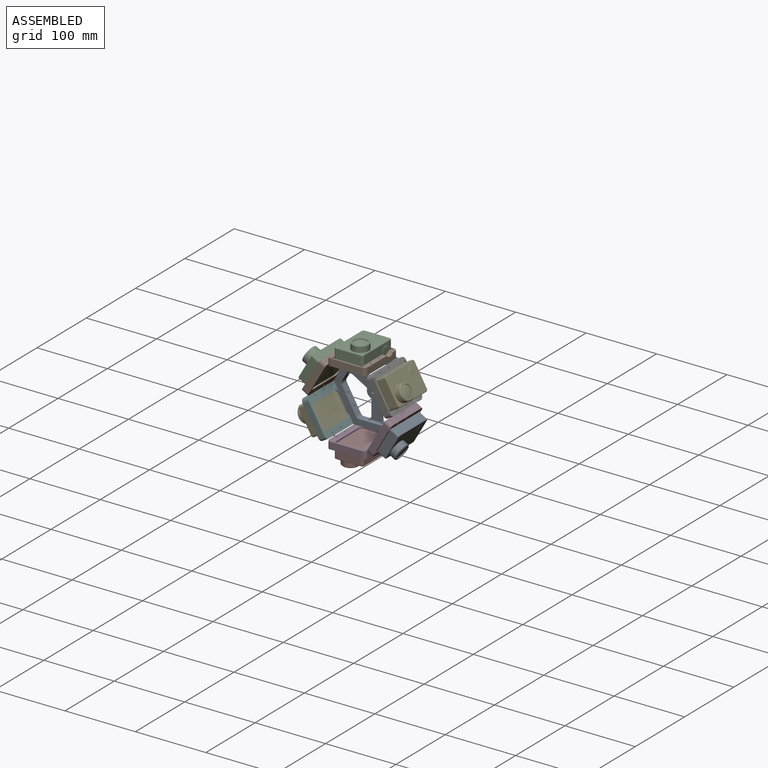
[diagram: assembled view]
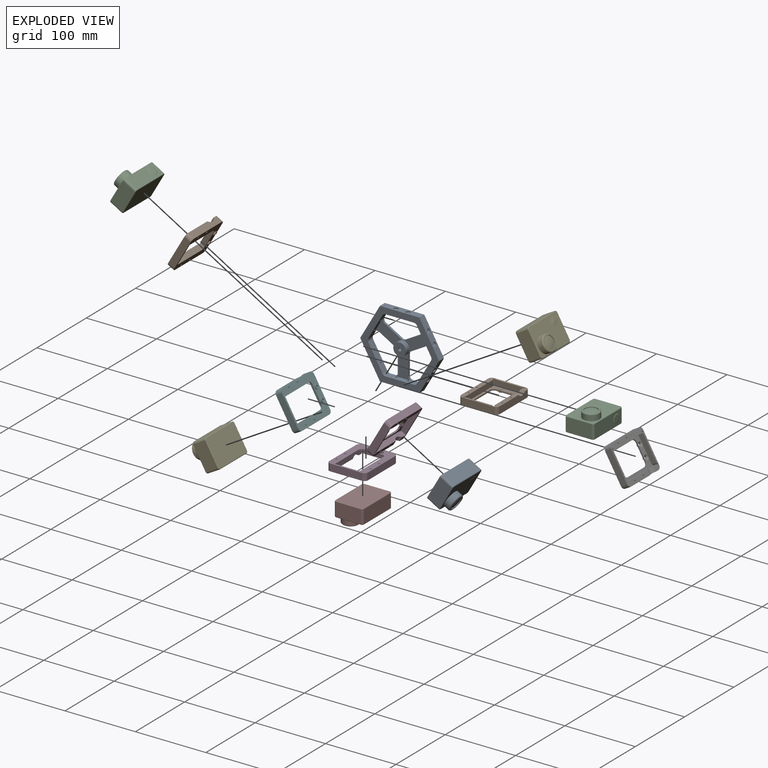
[diagram: exploded view]
GUIDED TOUR — MATED ASSEMBLY (Onshape document 9c38cecef5e9b53f635a4dc5, AutoMate assembly 9c38cecef5e9b53f635a4dc5_227ad06c4d0394dedd1eaec3_ae85a5137a5b2e4cc9e6681c_default)

This assembly has 13 components, labeled P0..P12 below (a component is one placed occurrence of a part; the same part can appear more than once), held together by 12 mates. A mate is a constraint between two components; its type names the relative motion it leaves free:
  FASTENED — locks the two components together rigidly (no relative motion).
Axis/direction vectors are unit vectors and 'through' points are millimeter coordinates, both in the assembly's world frame.

MATES
  1. FASTENED "Fastened 11": P4 <-> P6, direction (-0.866, 0.000, -0.500) through (129.96, 152.46, 191.49) mm
  2. FASTENED "Fastened 8": P10 <-> P1, direction (0.866, 0.000, -0.500) through (42.50, 152.46, 191.49) mm
  3. FASTENED "Fastened 9": P7 <-> P11, direction (0.000, 0.000, 1.000) through (86.23, 152.46, 115.75) mm
  4. FASTENED "Fastened 3": P5 <-> P8, direction (-0.500, 0.000, 0.866) through (44.23, 154.96, 142.00) mm
  5. FASTENED "Fastened 1": P11 <-> P8, direction (-1.000, 0.000, 0.000) through (86.23, 154.96, 117.75) mm
  6. FASTENED "Fastened 10": P0 <-> P3, direction (-0.866, 0.000, 0.500) through (129.96, 152.46, 141.00) mm
  7. FASTENED "Fastened 6": P9 <-> P8, direction (1.000, 0.000, 0.000) through (86.23, 144.96, 214.74) mm
  8. FASTENED "Fastened 5": P6 <-> P8, direction (0.500, 0.000, -0.866) through (128.23, 154.96, 190.49) mm
  9. FASTENED "Fastened 12": P2 <-> P9, direction (-1.000, 0.000, 0.000) through (86.23, 152.46, 216.74) mm
  10. FASTENED "Fastened 2": P3 <-> P8, direction (-0.500, 0.000, -0.866) through (128.23, 154.96, 142.00) mm
  11. FASTENED "Fastened 4": P1 <-> P8, direction (0.500, 0.000, 0.866) through (44.23, 154.96, 190.49) mm
  12. FASTENED "Fastened 7": P12 <-> P5, direction (0.866, 0.000, 0.500) through (42.50, 152.46, 141.00) mm

ASSEMBLY ORDER
  1. P3 — the base component [order verified]
  2. P8 [order verified]
  3. P6 [order verified]
  4. P0 [order verified]
  5. P4 [order verified]
  6. P9 [order verified]
  7. P11 [order verified]
  8. P1 [order verified]
  9. P5 [order verified]
  10. P10 [order verified]
  11. P12 [order verified]
  12. P2 [order verified]
  13. P7 [order verified]
(P1, P5, P6, P9, P11 verified with a relaxed clearance tolerance: the source model stores slight part interference there.)
Order-tag legend:
  [order verified] — this step's position reverses a verified removal order: the component was checked to insert without passing through the ones already placed.

Of the 13 components, 7 carry the full construction recipe — the FeatureScript program that regenerates the part's solid from scratch; the rest are supplied as boundary geometry only.
Because this assembly has more than 12 components, the tour below covers the 12 most significant ones individually (every recipe-attached component first, then the largest by part volume), in assembly order; the remaining 1 are summarized together in a grouped section at the end.
Each toured component is shown spotlighted twice — in the assembled view, then in the exploded view, where a leader line traces a displaced component back to its assembled socket (saturated green if recipe-attached, orange if geometry-only; every other component desaturated gray) — followed by its recipe or geometry summary and the mates that hold it.
NOTE — this tour is split across 2 documents so each fits a 32k-token context. This is document 1: the component sections continue in the remaining 1 document, each repeating the header above.
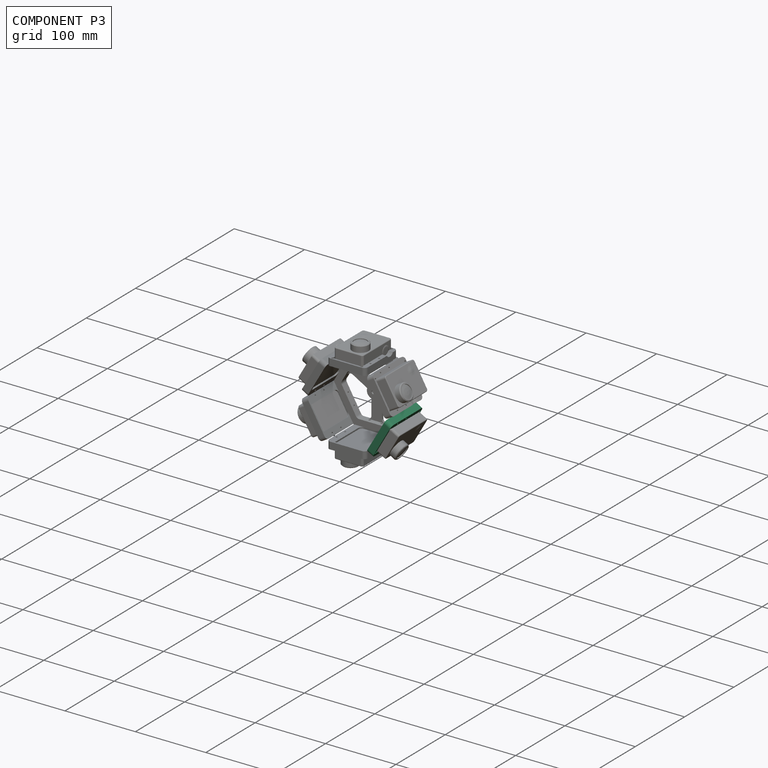
[diagram: component P3 — assembled]
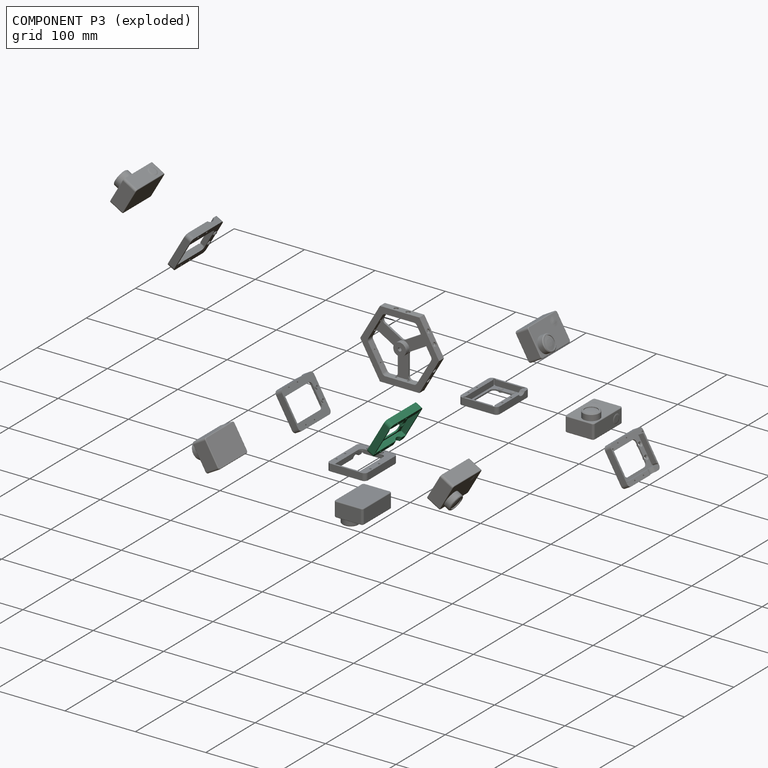
[diagram: component P3 — exploded]
COMPONENT P3 — same part as P1 (CADFS 00347183); its construction recipe is shown at P1.
Held by: FASTENED mate "Fastened 10" to P0; FASTENED mate "Fastened 2" to P8.
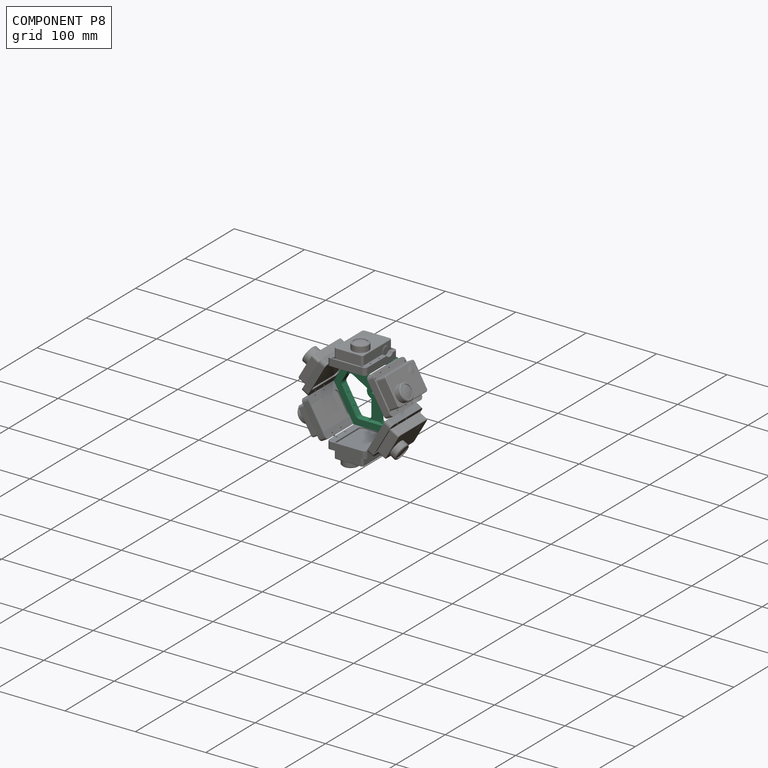
[diagram: component P8 — assembled]
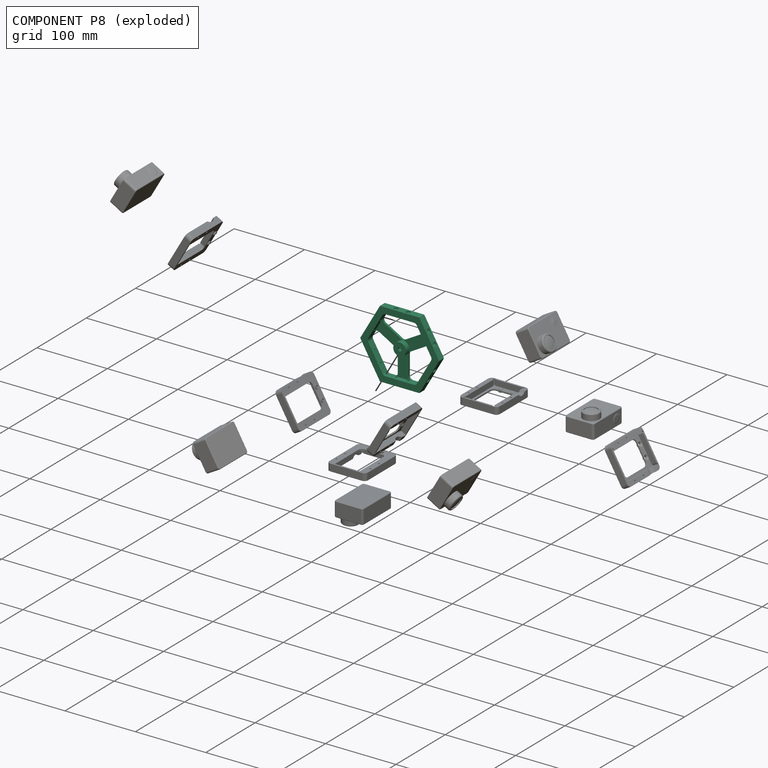
[diagram: component P8 — exploded]
COMPONENT P8 — recipe-attached (CADFS 00347187, mesh-verified: the recipe's output STEP matches this component's geometry to below the mesh-comparison resolution (tessellation chordal tolerance ~0.223 mm)).
Held by: FASTENED mate "Fastened 3" to P5; FASTENED mate "Fastened 1" to P11; FASTENED mate "Fastened 6" to P9; FASTENED mate "Fastened 5" to P6; FASTENED mate "Fastened 2" to P3; FASTENED mate "Fastened 4" to P1.
Construction recipe (FeatureScript — the CAD program that rebuilds this solid; sketch coordinates are in the units given by the * unit suffixes, e.g. mm):

FeatureScript 1511;
import(path : "onshape/std/geometry.fs", version : "1511.0");
import(path : "onshape/std/common.fs", version : "1511.0");
const mm = millimeter;
const VERTEX = EntityType.VERTEX;
const EDGE = EntityType.EDGE;
const FACE = EntityType.FACE;
const BODY = EntityType.BODY;
function v(x, y){return vector(x, y);}
function OD(order){return orderDisambiguation(order);}
function OSD(set){return originalSetDisambiguation(set);}
function TD(topology){return topologyDisambiguation(topology);}
function TDD(query){return trueDependencyDisambiguation(query);}
function sQuery(a, b, c) {return sketchEntityQuery(a, b, c);}

annotation { "Feature Type Name" : "Feature", "Feature Type Description" : "" }
export const myFeature = defineFeature(function(context is Context, id is Id, definition is map)
    precondition{}
    {
        {
            var Q0;
            Q0=qCreatedBy(makeId("Front.planeOp"),FACE);
            var sketch = newSketch(context, id + "F0", { "sketchPlane" : qUnion([Q0])});
            skCircle(sketch, "E0.cCircle", {"center": v(0, 0) * mm, "radius": 56 * mm, "construction": true});
            skLineSegment(sketch, "E0.0", {"start": v(56, 0) * mm, "end": v(28, -48.5) * mm});
            skLineSegment(sketch, "E0.1", {"start": v(28, -48.5) * mm, "end": v(-28, -48.5) * mm});
            skLineSegment(sketch, "E0.2", {"start": v(-28, -48.5) * mm, "end": v(-56, 0) * mm});
            skLineSegment(sketch, "E0.3", {"start": v(-56, 0) * mm, "end": v(-28, 48.5) * mm});
            skLineSegment(sketch, "E0.4", {"start": v(-28, 48.5) * mm, "end": v(28, 48.5) * mm});
            skLineSegment(sketch, "E0.5", {"start": v(28, 48.5) * mm, "end": v(56, 0) * mm});
            skCircle(sketch, "E1.cCircle", {"center": v(0, 0) * mm, "radius": 46 * mm, "construction": true});
            skLineSegment(sketch, "E1.0", {"start": v(44.56, -2.5) * mm, "end": v(24.44, -37.34) * mm});
            skLineSegment(sketch, "E1.1", {"start": v(20.11, -39.84) * mm, "end": v(12.5, -39.84) * mm});
            skLineSegment(sketch, "E1.2", {"start": v(-24.44, -37.34) * mm, "end": v(-44.56, -2.5) * mm});
            skLineSegment(sketch, "E1.3", {"start": v(-28.25, 30.74) * mm, "end": v(-24.44, 37.34) * mm});
            skLineSegment(sketch, "E1.4", {"start": v(-20.11, 39.84) * mm, "end": v(20.11, 39.84) * mm});
            skLineSegment(sketch, "E1.5", {"start": v(24.44, 37.34) * mm, "end": v(28.25, 30.74) * mm});
            skLineSegment(sketch, "E2", {"start": v(7.5, -7.22) * mm, "end": v(7.5, -34.84) * mm});
            skLineSegment(sketch, "E3", {"start": v(-7.5, -7.22) * mm, "end": v(-7.5, -34.84) * mm});
            skLineSegment(sketch, "E4", {"start": v(10, -2.89) * mm, "end": v(33.92, 10.92) * mm});
            skLineSegment(sketch, "E5", {"start": v(2.5, 10.1) * mm, "end": v(26.42, 23.91) * mm});
            skLineSegment(sketch, "E6", {"start": v(-2.5, 10.1) * mm, "end": v(-26.42, 23.91) * mm});
            skLineSegment(sketch, "E7", {"start": v(-10, -2.89) * mm, "end": v(-33.92, 10.92) * mm});
            skPoint(sketch, "E8.newPointB", {"position": v(-46, 0) * mm});
            skArc(sketch, "E8.filletArc", {"start": v(-28.25, 30.74) * mm, "mid": v(-28.75, 26.95) * mm, "end": v(-26.42, 23.91) * mm});
            skPoint(sketch, "E9.visualSharp", {"position": v(-23, 39.84) * mm});
            skArc(sketch, "E9.filletArc", {"start": v(-20.11, 39.84) * mm, "mid": v(-22.61, 39.17) * mm, "end": v(-24.44, 37.34) * mm});
            skPoint(sketch, "E10.visualSharp", {"position": v(23, 39.84) * mm});
            skArc(sketch, "E10.filletArc", {"start": v(24.44, 37.34) * mm, "mid": v(22.61, 39.17) * mm, "end": v(20.11, 39.84) * mm});
            skPoint(sketch, "E11.newPointA", {"position": v(46, 0) * mm});
            skArc(sketch, "E11.filletArc", {"start": v(26.42, 23.91) * mm, "mid": v(28.75, 26.95) * mm, "end": v(28.25, 30.74) * mm});
            skPoint(sketch, "E12.visualSharp", {"position": v(23, -39.84) * mm});
            skArc(sketch, "E12.filletArc", {"start": v(20.11, -39.84) * mm, "mid": v(22.61, -39.17) * mm, "end": v(24.44, -37.34) * mm});
            skArc(sketch, "E13.filletArc", {"start": v(7.5, -34.84) * mm, "mid": v(8.96, -38.37) * mm, "end": v(12.5, -39.84) * mm});
            skArc(sketch, "E14.filletArc", {"start": v(10, -2.89) * mm, "mid": v(8.17, -4.72) * mm, "end": v(7.5, -7.22) * mm});
            skArc(sketch, "E15.filletArc", {"start": v(-7.5, -7.22) * mm, "mid": v(-8.17, -4.72) * mm, "end": v(-10, -2.89) * mm});
            skArc(sketch, "E16.filletArc", {"start": v(-2.5, 10.1) * mm, "mid": v(0, 9.43) * mm, "end": v(2.5, 10.1) * mm});
            skLineSegment(sketch, "E17", {"start": v(-40.75, 9.1) * mm, "end": v(-44.56, 2.5) * mm});
            skLineSegment(sketch, "E18", {"start": v(-20.11, -39.84) * mm, "end": v(-12.5, -39.84) * mm});
            skLineSegment(sketch, "E19", {"start": v(44.56, 2.5) * mm, "end": v(40.75, 9.1) * mm});
            skPoint(sketch, "E20.visualSharp", {"position": v(38.25, 13.42) * mm});
            skArc(sketch, "E20.filletArc", {"start": v(40.75, 9.1) * mm, "mid": v(37.71, 11.42) * mm, "end": v(33.92, 10.92) * mm});
            skArc(sketch, "E21.filletArc", {"start": v(44.56, -2.5) * mm, "mid": v(45.23, 0) * mm, "end": v(44.56, 2.5) * mm});
            skPoint(sketch, "E22.visualSharp", {"position": v(-38.25, 13.42) * mm});
            skArc(sketch, "E22.filletArc", {"start": v(-33.92, 10.92) * mm, "mid": v(-37.71, 11.42) * mm, "end": v(-40.75, 9.1) * mm});
            skPoint(sketch, "E23.visualSharp", {"position": v(-7.5, -39.84) * mm});
            skArc(sketch, "E23.filletArc", {"start": v(-12.5, -39.84) * mm, "mid": v(-8.96, -38.37) * mm, "end": v(-7.5, -34.84) * mm});
            skPoint(sketch, "E24.visualSharp", {"position": v(-23, -39.84) * mm});
            skArc(sketch, "E24.filletArc", {"start": v(-24.44, -37.34) * mm, "mid": v(-22.61, -39.17) * mm, "end": v(-20.11, -39.84) * mm});
            skArc(sketch, "E25.filletArc", {"start": v(-44.56, 2.5) * mm, "mid": v(-45.23, 0) * mm, "end": v(-44.56, -2.5) * mm});
            skCircle(sketch, "E26", {"center": v(0, 0) * mm, "radius": 9.05 * mm});
            skLineSegment(sketch, "E27", {"start": v(-28.25, 30.74) * mm, "end": v(-40.75, 9.1) * mm});
            skLineSegment(sketch, "E28", {"start": v(28.25, 30.74) * mm, "end": v(40.75, 9.1) * mm});
            skLineSegment(sketch, "E29", {"start": v(12.5, -39.84) * mm, "end": v(-12.5, -39.84) * mm});
            skSolve(sketch);
        }
        {
            var Q0;
            Q0=makeQuery(id+"F0.imprint","IMPRINT",FACE,{"disambiguationData":[TD([[makeQuery(id+"F0.imprint","IMPRINT",EDGE,{"derivedFrom":sQuery(id+"F0.wireOp",EDGE,"E0.0")}),-1.0]])]});
            var Q1;
            Q1=makeQuery(id+"F0.imprint","IMPRINT",FACE,{"disambiguationData":[TD([[makeQuery(id+"F0.imprint","IMPRINT",EDGE,{"derivedFrom":sQuery(id+"F0.wireOp",EDGE,"E26")}),1.0]])]});
            var Q2;
            Q2=makeQuery(id+"F0.imprint","IMPRINT",FACE,{"disambiguationData":[TD([[makeQuery(id+"F0.imprint","IMPRINT",EDGE,{"derivedFrom":sQuery(id+"F0.wireOp",EDGE,"E2")}),-1.0]])]});
            extrude(context, id + "F1", {"entities" : qUnion([Q0, Q1, Q2]), "depth" : 3 * mm});
        }
        {
            var Q0;
            Q0 = qSketchRegion(id + "F0", true);
            var Q1;
            Q1=makeQuery(id+"F0.imprint","IMPRINT",FACE,{"disambiguationData":[TD([[makeQuery(id+"F0.imprint","IMPRINT",EDGE,{"derivedFrom":sQuery(id+"F0.wireOp",EDGE,"E26")}),1.0]])]});
            extrude(context, id + "F2", {"entities" : qUnion([Q0, Q1]), "operationType" : NewBodyOperationType.ADD, "depth" : 10 * mm});
        }
        {
            var Q0;
            {var subQ0=sQuery(id+"F0.wireOp",EDGE,"E0.1");Q0=makeQuery(id+"F2.boolean.opBoolean","MERGE",FACE,{"derivedFrom":[makeQuery(id+"F1.opExtrude","SWEPT_FACE",FACE,{"disambiguationData":[OSD([subQ0])]}),makeQuery(id+"F2.opExtrude","SWEPT_FACE",FACE,{"disambiguationData":[OSD([subQ0])]})]});}
            var sketch = newSketch(context, id + "F3", { "sketchPlane" : qUnion([Q0])});
            skPoint(sketch, "E30", {"position": v(-8.5, 5) * mm});
            skPoint(sketch, "E31", {"position": v(8.5, 5) * mm});
            skSolve(sketch);
        }
        {
            var Q0;
            {var subQ0=sQuery(id+"F0.wireOp",EDGE,"E0.0");Q0=makeQuery(id+"F2.boolean.opBoolean","MERGE",FACE,{"derivedFrom":[makeQuery(id+"F1.opExtrude","SWEPT_FACE",FACE,{"disambiguationData":[OSD([subQ0])]}),makeQuery(id+"F2.opExtrude","SWEPT_FACE",FACE,{"disambiguationData":[OSD([subQ0])]})]});}
            var sketch = newSketch(context, id + "F4", { "sketchPlane" : qUnion([Q0])});
            skPoint(sketch, "E32", {"position": v(-5, -8.5) * mm});
            skPoint(sketch, "E33", {"position": v(-5, 8.5) * mm});
            skSolve(sketch);
        }
        {
            var Q0;
            {var subQ0=sQuery(id+"F0.wireOp",EDGE,"E0.5");Q0=makeQuery(id+"F2.boolean.opBoolean","MERGE",FACE,{"derivedFrom":[makeQuery(id+"F1.opExtrude","SWEPT_FACE",FACE,{"disambiguationData":[OSD([subQ0])]}),makeQuery(id+"F2.opExtrude","SWEPT_FACE",FACE,{"disambiguationData":[OSD([subQ0])]})]});}
            var sketch = newSketch(context, id + "F5", { "sketchPlane" : qUnion([Q0])});
            skPoint(sketch, "E34", {"position": v(-5, -8.5) * mm});
            skPoint(sketch, "E35", {"position": v(-5, 8.5) * mm});
            skSolve(sketch);
        }
        {
            var Q0;
            {var subQ0=sQuery(id+"F0.wireOp",EDGE,"E0.3");Q0=makeQuery(id+"F2.boolean.opBoolean","MERGE",FACE,{"derivedFrom":[makeQuery(id+"F1.opExtrude","SWEPT_FACE",FACE,{"disambiguationData":[OSD([subQ0])]}),makeQuery(id+"F2.opExtrude","SWEPT_FACE",FACE,{"disambiguationData":[OSD([subQ0])]})]});}
            var sketch = newSketch(context, id + "F6", { "sketchPlane" : qUnion([Q0])});
            skPoint(sketch, "E36.endSnap0", {"position": v(5, 28) * mm});
            skPoint(sketch, "E37", {"position": v(5, 8.5) * mm});
            skPoint(sketch, "E38", {"position": v(5, -8.5) * mm});
            skSolve(sketch);
        }
        {
            var Q0;
            {var subQ0=sQuery(id+"F0.wireOp",EDGE,"E0.2");Q0=makeQuery(id+"F2.boolean.opBoolean","MERGE",FACE,{"derivedFrom":[makeQuery(id+"F1.opExtrude","SWEPT_FACE",FACE,{"disambiguationData":[OSD([subQ0])]}),makeQuery(id+"F2.opExtrude","SWEPT_FACE",FACE,{"disambiguationData":[OSD([subQ0])]})]});}
            var sketch = newSketch(context, id + "F7", { "sketchPlane" : qUnion([Q0])});
            skPoint(sketch, "E39", {"position": v(5, 8.5) * mm});
            skPoint(sketch, "E40", {"position": v(5, -8.5) * mm});
            skSolve(sketch);
        }
        {
            var Q0;
            Q0=sQuery(id+"F3.wireOp",VERTEX,"E30");
            var Q1;
            Q1=sQuery(id+"F3.wireOp",VERTEX,"E31");
            var Q2;
            Q2=makeQuery(id+"F1.opExtrude","SWEPT_BODY",BODY,{"disambiguationData":[OSD([sQuery(id+"F0.wireOp",EDGE,"E0.0"),sQuery(id+"F0.wireOp",EDGE,"E0.1"),sQuery(id+"F0.wireOp",EDGE,"E0.2"),sQuery(id+"F0.wireOp",EDGE,"E0.3"),sQuery(id+"F0.wireOp",EDGE,"E0.4"),sQuery(id+"F0.wireOp",EDGE,"E0.5"),sQuery(id+"F0.wireOp",EDGE,"E1.0"),sQuery(id+"F0.wireOp",EDGE,"E1.1"),sQuery(id+"F0.wireOp",EDGE,"E1.2"),sQuery(id+"F0.wireOp",EDGE,"E1.3"),sQuery(id+"F0.wireOp",EDGE,"E1.4"),sQuery(id+"F0.wireOp",EDGE,"E1.5"),sQuery(id+"F0.wireOp",EDGE,"E2"),sQuery(id+"F0.wireOp",EDGE,"E3"),sQuery(id+"F0.wireOp",EDGE,"E4"),sQuery(id+"F0.wireOp",EDGE,"E5"),sQuery(id+"F0.wireOp",EDGE,"E6"),sQuery(id+"F0.wireOp",EDGE,"E7"),sQuery(id+"F0.wireOp",EDGE,"E8.filletArc"),sQuery(id+"F0.wireOp",EDGE,"E9.filletArc"),sQuery(id+"F0.wireOp",EDGE,"E10.filletArc"),sQuery(id+"F0.wireOp",EDGE,"E11.filletArc"),sQuery(id+"F0.wireOp",EDGE,"E12.filletArc"),sQuery(id+"F0.wireOp",EDGE,"E13.filletArc"),sQuery(id+"F0.wireOp",EDGE,"E14.filletArc"),sQuery(id+"F0.wireOp",EDGE,"E15.filletArc"),sQuery(id+"F0.wireOp",EDGE,"E16.filletArc"),sQuery(id+"F0.wireOp",EDGE,"E17"),sQuery(id+"F0.wireOp",EDGE,"E18"),sQuery(id+"F0.wireOp",EDGE,"E19"),sQuery(id+"F0.wireOp",EDGE,"E20.filletArc"),sQuery(id+"F0.wireOp",EDGE,"E21.filletArc"),sQuery(id+"F0.wireOp",EDGE,"E22.filletArc"),sQuery(id+"F0.wireOp",EDGE,"E23.filletArc"),sQuery(id+"F0.wireOp",EDGE,"E24.filletArc"),sQuery(id+"F0.wireOp",EDGE,"E25.filletArc")])]});
            hole(context, id + "F8", {"style" : HoleStyle.SIMPLE, "endStyle" : HoleEndStyle.BLIND, "holeDiameter" : 6 * mm, "holeDepth" : 2 * mm, "tappedDepth" : 12 * mm, "tapClearance" : 3, "locations" : qUnion([Q0, Q1]), "scope" : qUnion([Q2])});
        }
        {
            var Q0;
            Q0=sQuery(id+"F3.wireOp",VERTEX,"E30");
            var Q1;
            Q1=sQuery(id+"F3.wireOp",VERTEX,"E31");
            var Q2;
            Q2=makeQuery(id+"F1.opExtrude","SWEPT_BODY",BODY,{"disambiguationData":[OSD([sQuery(id+"F0.wireOp",EDGE,"E0.0"),sQuery(id+"F0.wireOp",EDGE,"E0.1"),sQuery(id+"F0.wireOp",EDGE,"E0.2"),sQuery(id+"F0.wireOp",EDGE,"E0.3"),sQuery(id+"F0.wireOp",EDGE,"E0.4"),sQuery(id+"F0.wireOp",EDGE,"E0.5"),sQuery(id+"F0.wireOp",EDGE,"E1.0"),sQuery(id+"F0.wireOp",EDGE,"E1.1"),sQuery(id+"F0.wireOp",EDGE,"E1.2"),sQuery(id+"F0.wireOp",EDGE,"E1.3"),sQuery(id+"F0.wireOp",EDGE,"E1.4"),sQuery(id+"F0.wireOp",EDGE,"E1.5"),sQuery(id+"F0.wireOp",EDGE,"E2"),sQuery(id+"F0.wireOp",EDGE,"E3"),sQuery(id+"F0.wireOp",EDGE,"E4"),sQuery(id+"F0.wireOp",EDGE,"E5"),sQuery(id+"F0.wireOp",EDGE,"E6"),sQuery(id+"F0.wireOp",EDGE,"E7"),sQuery(id+"F0.wireOp",EDGE,"E8.filletArc"),sQuery(id+"F0.wireOp",EDGE,"E9.filletArc"),sQuery(id+"F0.wireOp",EDGE,"E10.filletArc"),sQuery(id+"F0.wireOp",EDGE,"E11.filletArc"),sQuery(id+"F0.wireOp",EDGE,"E12.filletArc"),sQuery(id+"F0.wireOp",EDGE,"E13.filletArc"),sQuery(id+"F0.wireOp",EDGE,"E14.filletArc"),sQuery(id+"F0.wireOp",EDGE,"E15.filletArc"),sQuery(id+"F0.wireOp",EDGE,"E16.filletArc"),sQuery(id+"F0.wireOp",EDGE,"E17"),sQuery(id+"F0.wireOp",EDGE,"E18"),sQuery(id+"F0.wireOp",EDGE,"E19"),sQuery(id+"F0.wireOp",EDGE,"E20.filletArc"),sQuery(id+"F0.wireOp",EDGE,"E21.filletArc"),sQuery(id+"F0.wireOp",EDGE,"E22.filletArc"),sQuery(id+"F0.wireOp",EDGE,"E23.filletArc"),sQuery(id+"F0.wireOp",EDGE,"E24.filletArc"),sQuery(id+"F0.wireOp",EDGE,"E25.filletArc")])]});
            hole(context, id + "F9", {"style" : HoleStyle.SIMPLE, "endStyle" : HoleEndStyle.BLIND, "standardTappedOrClearance" : lookupTablePath({ "standard" : "ISO", "engagement" : "75%", "pitch" : "0.5 mm", "size" : "M3", "type" : "Tapped" }), "standardBlindInLast" : lookupTablePath({ "standard" : "ISO", "engagement" : "75%", "pitch" : "0.5 mm", "size" : "M3", "type" : "Tapped" }), "holeDiameter" : 2.5 * mm, "showTappedDepth" : true, "holeDepth" : 13.5 * mm, "tappedDepth" : 12 * mm, "tapClearance" : 3, "locations" : qUnion([Q0, Q1]), "scope" : qUnion([Q2]), "majorDiameter" : 3 * mm});
        }
        {
            var Q0;
            Q0=sQuery(id+"F4.wireOp",VERTEX,"E32");
            var Q1;
            Q1=sQuery(id+"F4.wireOp",VERTEX,"E33");
            var Q2;
            Q2=makeQuery(id+"F1.opExtrude","SWEPT_BODY",BODY,{"disambiguationData":[OSD([sQuery(id+"F0.wireOp",EDGE,"E0.0"),sQuery(id+"F0.wireOp",EDGE,"E0.1"),sQuery(id+"F0.wireOp",EDGE,"E0.2"),sQuery(id+"F0.wireOp",EDGE,"E0.3"),sQuery(id+"F0.wireOp",EDGE,"E0.4"),sQuery(id+"F0.wireOp",EDGE,"E0.5"),sQuery(id+"F0.wireOp",EDGE,"E1.0"),sQuery(id+"F0.wireOp",EDGE,"E1.1"),sQuery(id+"F0.wireOp",EDGE,"E1.2"),sQuery(id+"F0.wireOp",EDGE,"E1.3"),sQuery(id+"F0.wireOp",EDGE,"E1.4"),sQuery(id+"F0.wireOp",EDGE,"E1.5"),sQuery(id+"F0.wireOp",EDGE,"E2"),sQuery(id+"F0.wireOp",EDGE,"E3"),sQuery(id+"F0.wireOp",EDGE,"E4"),sQuery(id+"F0.wireOp",EDGE,"E5"),sQuery(id+"F0.wireOp",EDGE,"E6"),sQuery(id+"F0.wireOp",EDGE,"E7"),sQuery(id+"F0.wireOp",EDGE,"E8.filletArc"),sQuery(id+"F0.wireOp",EDGE,"E9.filletArc"),sQuery(id+"F0.wireOp",EDGE,"E10.filletArc"),sQuery(id+"F0.wireOp",EDGE,"E11.filletArc"),sQuery(id+"F0.wireOp",EDGE,"E12.filletArc"),sQuery(id+"F0.wireOp",EDGE,"E13.filletArc"),sQuery(id+"F0.wireOp",EDGE,"E14.filletArc"),sQuery(id+"F0.wireOp",EDGE,"E15.filletArc"),sQuery(id+"F0.wireOp",EDGE,"E16.filletArc"),sQuery(id+"F0.wireOp",EDGE,"E17"),sQuery(id+"F0.wireOp",EDGE,"E18"),sQuery(id+"F0.wireOp",EDGE,"E19"),sQuery(id+"F0.wireOp",EDGE,"E20.filletArc"),sQuery(id+"F0.wireOp",EDGE,"E21.filletArc"),sQuery(id+"F0.wireOp",EDGE,"E22.filletArc"),sQuery(id+"F0.wireOp",EDGE,"E23.filletArc"),sQuery(id+"F0.wireOp",EDGE,"E24.filletArc"),sQuery(id+"F0.wireOp",EDGE,"E25.filletArc")])]});
            hole(context, id + "F10", {"style" : HoleStyle.SIMPLE, "endStyle" : HoleEndStyle.BLIND, "standardTappedOrClearance" : lookupTablePath({ "standard" : "ISO", "engagement" : "75%", "pitch" : "0.5 mm", "size" : "M3", "type" : "Tapped" }), "standardBlindInLast" : lookupTablePath({ "standard" : "ISO", "engagement" : "75%", "pitch" : "0.5 mm", "size" : "M3", "type" : "Tapped" }), "holeDiameter" : 2.5 * mm, "showTappedDepth" : true, "holeDepth" : 13.5 * mm, "tappedDepth" : 12 * mm, "tapClearance" : 3, "locations" : qUnion([Q0, Q1]), "scope" : qUnion([Q2]), "majorDiameter" : 3 * mm});
        }
        {
            var Q0;
            Q0=sQuery(id+"F4.wireOp",VERTEX,"E32");
            var Q1;
            Q1=sQuery(id+"F4.wireOp",VERTEX,"E33");
            var Q2;
            Q2=makeQuery(id+"F1.opExtrude","SWEPT_BODY",BODY,{"disambiguationData":[OSD([sQuery(id+"F0.wireOp",EDGE,"E0.0"),sQuery(id+"F0.wireOp",EDGE,"E0.1"),sQuery(id+"F0.wireOp",EDGE,"E0.2"),sQuery(id+"F0.wireOp",EDGE,"E0.3"),sQuery(id+"F0.wireOp",EDGE,"E0.4"),sQuery(id+"F0.wireOp",EDGE,"E0.5"),sQuery(id+"F0.wireOp",EDGE,"E1.0"),sQuery(id+"F0.wireOp",EDGE,"E1.1"),sQuery(id+"F0.wireOp",EDGE,"E1.2"),sQuery(id+"F0.wireOp",EDGE,"E1.3"),sQuery(id+"F0.wireOp",EDGE,"E1.4"),sQuery(id+"F0.wireOp",EDGE,"E1.5"),sQuery(id+"F0.wireOp",EDGE,"E2"),sQuery(id+"F0.wireOp",EDGE,"E3"),sQuery(id+"F0.wireOp",EDGE,"E4"),sQuery(id+"F0.wireOp",EDGE,"E5"),sQuery(id+"F0.wireOp",EDGE,"E6"),sQuery(id+"F0.wireOp",EDGE,"E7"),sQuery(id+"F0.wireOp",EDGE,"E8.filletArc"),sQuery(id+"F0.wireOp",EDGE,"E9.filletArc"),sQuery(id+"F0.wireOp",EDGE,"E10.filletArc"),sQuery(id+"F0.wireOp",EDGE,"E11.filletArc"),sQuery(id+"F0.wireOp",EDGE,"E12.filletArc"),sQuery(id+"F0.wireOp",EDGE,"E13.filletArc"),sQuery(id+"F0.wireOp",EDGE,"E14.filletArc"),sQuery(id+"F0.wireOp",EDGE,"E15.filletArc"),sQuery(id+"F0.wireOp",EDGE,"E16.filletArc"),sQuery(id+"F0.wireOp",EDGE,"E17"),sQuery(id+"F0.wireOp",EDGE,"E18"),sQuery(id+"F0.wireOp",EDGE,"E19"),sQuery(id+"F0.wireOp",EDGE,"E20.filletArc"),sQuery(id+"F0.wireOp",EDGE,"E21.filletArc"),sQuery(id+"F0.wireOp",EDGE,"E22.filletArc"),sQuery(id+"F0.wireOp",EDGE,"E23.filletArc"),sQuery(id+"F0.wireOp",EDGE,"E24.filletArc"),sQuery(id+"F0.wireOp",EDGE,"E25.filletArc")])]});
            hole(context, id + "F11", {"style" : HoleStyle.SIMPLE, "endStyle" : HoleEndStyle.BLIND, "holeDiameter" : 6 * mm, "holeDepth" : 2 * mm, "tappedDepth" : 12 * mm, "tapClearance" : 3, "locations" : qUnion([Q0, Q1]), "scope" : qUnion([Q2])});
        }
        {
            var Q0;
            Q0=sQuery(id+"F5.wireOp",VERTEX,"E34");
            var Q1;
            Q1=sQuery(id+"F5.wireOp",VERTEX,"E35");
            var Q2;
            Q2=makeQuery(id+"F1.opExtrude","SWEPT_BODY",BODY,{"disambiguationData":[OSD([sQuery(id+"F0.wireOp",EDGE,"E0.0"),sQuery(id+"F0.wireOp",EDGE,"E0.1"),sQuery(id+"F0.wireOp",EDGE,"E0.2"),sQuery(id+"F0.wireOp",EDGE,"E0.3"),sQuery(id+"F0.wireOp",EDGE,"E0.4"),sQuery(id+"F0.wireOp",EDGE,"E0.5"),sQuery(id+"F0.wireOp",EDGE,"E1.0"),sQuery(id+"F0.wireOp",EDGE,"E1.1"),sQuery(id+"F0.wireOp",EDGE,"E1.2"),sQuery(id+"F0.wireOp",EDGE,"E1.3"),sQuery(id+"F0.wireOp",EDGE,"E1.4"),sQuery(id+"F0.wireOp",EDGE,"E1.5"),sQuery(id+"F0.wireOp",EDGE,"E2"),sQuery(id+"F0.wireOp",EDGE,"E3"),sQuery(id+"F0.wireOp",EDGE,"E4"),sQuery(id+"F0.wireOp",EDGE,"E5"),sQuery(id+"F0.wireOp",EDGE,"E6"),sQuery(id+"F0.wireOp",EDGE,"E7"),sQuery(id+"F0.wireOp",EDGE,"E8.filletArc"),sQuery(id+"F0.wireOp",EDGE,"E9.filletArc"),sQuery(id+"F0.wireOp",EDGE,"E10.filletArc"),sQuery(id+"F0.wireOp",EDGE,"E11.filletArc"),sQuery(id+"F0.wireOp",EDGE,"E12.filletArc"),sQuery(id+"F0.wireOp",EDGE,"E13.filletArc"),sQuery(id+"F0.wireOp",EDGE,"E14.filletArc"),sQuery(id+"F0.wireOp",EDGE,"E15.filletArc"),sQuery(id+"F0.wireOp",EDGE,"E16.filletArc"),sQuery(id+"F0.wireOp",EDGE,"E17"),sQuery(id+"F0.wireOp",EDGE,"E18"),sQuery(id+"F0.wireOp",EDGE,"E19"),sQuery(id+"F0.wireOp",EDGE,"E20.filletArc"),sQuery(id+"F0.wireOp",EDGE,"E21.filletArc"),sQuery(id+"F0.wireOp",EDGE,"E22.filletArc"),sQuery(id+"F0.wireOp",EDGE,"E23.filletArc"),sQuery(id+"F0.wireOp",EDGE,"E24.filletArc"),sQuery(id+"F0.wireOp",EDGE,"E25.filletArc")])]});
            hole(context, id + "F12", {"style" : HoleStyle.SIMPLE, "endStyle" : HoleEndStyle.BLIND, "holeDiameter" : 6 * mm, "holeDepth" : 2 * mm, "tappedDepth" : 12 * mm, "tapClearance" : 3, "locations" : qUnion([Q0, Q1]), "scope" : qUnion([Q2])});
        }
        {
            var Q0;
            Q0=sQuery(id+"F5.wireOp",VERTEX,"E34");
            var Q1;
            Q1=sQuery(id+"F5.wireOp",VERTEX,"E35");
            var Q2;
            Q2=makeQuery(id+"F1.opExtrude","SWEPT_BODY",BODY,{"disambiguationData":[OSD([sQuery(id+"F0.wireOp",EDGE,"E0.0"),sQuery(id+"F0.wireOp",EDGE,"E0.1"),sQuery(id+"F0.wireOp",EDGE,"E0.2"),sQuery(id+"F0.wireOp",EDGE,"E0.3"),sQuery(id+"F0.wireOp",EDGE,"E0.4"),sQuery(id+"F0.wireOp",EDGE,"E0.5"),sQuery(id+"F0.wireOp",EDGE,"E1.0"),sQuery(id+"F0.wireOp",EDGE,"E1.1"),sQuery(id+"F0.wireOp",EDGE,"E1.2"),sQuery(id+"F0.wireOp",EDGE,"E1.3"),sQuery(id+"F0.wireOp",EDGE,"E1.4"),sQuery(id+"F0.wireOp",EDGE,"E1.5"),sQuery(id+"F0.wireOp",EDGE,"E2"),sQuery(id+"F0.wireOp",EDGE,"E3"),sQuery(id+"F0.wireOp",EDGE,"E4"),sQuery(id+"F0.wireOp",EDGE,"E5"),sQuery(id+"F0.wireOp",EDGE,"E6"),sQuery(id+"F0.wireOp",EDGE,"E7"),sQuery(id+"F0.wireOp",EDGE,"E8.filletArc"),sQuery(id+"F0.wireOp",EDGE,"E9.filletArc"),sQuery(id+"F0.wireOp",EDGE,"E10.filletArc"),sQuery(id+"F0.wireOp",EDGE,"E11.filletArc"),sQuery(id+"F0.wireOp",EDGE,"E12.filletArc"),sQuery(id+"F0.wireOp",EDGE,"E13.filletArc"),sQuery(id+"F0.wireOp",EDGE,"E14.filletArc"),sQuery(id+"F0.wireOp",EDGE,"E15.filletArc"),sQuery(id+"F0.wireOp",EDGE,"E16.filletArc"),sQuery(id+"F0.wireOp",EDGE,"E17"),sQuery(id+"F0.wireOp",EDGE,"E18"),sQuery(id+"F0.wireOp",EDGE,"E19"),sQuery(id+"F0.wireOp",EDGE,"E20.filletArc"),sQuery(id+"F0.wireOp",EDGE,"E21.filletArc"),sQuery(id+"F0.wireOp",EDGE,"E22.filletArc"),sQuery(id+"F0.wireOp",EDGE,"E23.filletArc"),sQuery(id+"F0.wireOp",EDGE,"E24.filletArc"),sQuery(id+"F0.wireOp",EDGE,"E25.filletArc")])]});
            hole(context, id + "F13", {"style" : HoleStyle.SIMPLE, "endStyle" : HoleEndStyle.BLIND, "standardTappedOrClearance" : lookupTablePath({ "standard" : "ISO", "engagement" : "75%", "pitch" : "0.5 mm", "size" : "M3", "type" : "Tapped" }), "standardBlindInLast" : lookupTablePath({ "standard" : "ISO", "engagement" : "75%", "pitch" : "0.5 mm", "size" : "M3", "type" : "Tapped" }), "holeDiameter" : 2.5 * mm, "showTappedDepth" : true, "holeDepth" : 13.5 * mm, "tappedDepth" : 12 * mm, "tapClearance" : 3, "locations" : qUnion([Q0, Q1]), "scope" : qUnion([Q2]), "majorDiameter" : 3 * mm});
        }
        {
            var Q0;
            {var subQ0=sQuery(id+"F0.wireOp",EDGE,"E0.4");Q0=makeQuery(id+"F2.boolean.opBoolean","MERGE",FACE,{"derivedFrom":[makeQuery(id+"F1.opExtrude","SWEPT_FACE",FACE,{"disambiguationData":[OSD([subQ0])]}),makeQuery(id+"F2.opExtrude","SWEPT_FACE",FACE,{"disambiguationData":[OSD([subQ0])]})]});}
            var sketch = newSketch(context, id + "F14", { "sketchPlane" : qUnion([Q0])});
            skPoint(sketch, "E41", {"position": v(8.5, -5) * mm});
            skPoint(sketch, "E42", {"position": v(-8.5, -5) * mm});
            skSolve(sketch);
        }
        {
            var Q0;
            Q0=sQuery(id+"F14.wireOp",VERTEX,"E41");
            var Q1;
            Q1=sQuery(id+"F14.wireOp",VERTEX,"E42");
            var Q2;
            Q2=makeQuery(id+"F1.opExtrude","SWEPT_BODY",BODY,{"disambiguationData":[OSD([sQuery(id+"F0.wireOp",EDGE,"E0.0"),sQuery(id+"F0.wireOp",EDGE,"E0.1"),sQuery(id+"F0.wireOp",EDGE,"E0.2"),sQuery(id+"F0.wireOp",EDGE,"E0.3"),sQuery(id+"F0.wireOp",EDGE,"E0.4"),sQuery(id+"F0.wireOp",EDGE,"E0.5"),sQuery(id+"F0.wireOp",EDGE,"E1.0"),sQuery(id+"F0.wireOp",EDGE,"E1.1"),sQuery(id+"F0.wireOp",EDGE,"E1.2"),sQuery(id+"F0.wireOp",EDGE,"E1.3"),sQuery(id+"F0.wireOp",EDGE,"E1.4"),sQuery(id+"F0.wireOp",EDGE,"E1.5"),sQuery(id+"F0.wireOp",EDGE,"E2"),sQuery(id+"F0.wireOp",EDGE,"E3"),sQuery(id+"F0.wireOp",EDGE,"E4"),sQuery(id+"F0.wireOp",EDGE,"E5"),sQuery(id+"F0.wireOp",EDGE,"E6"),sQuery(id+"F0.wireOp",EDGE,"E7"),sQuery(id+"F0.wireOp",EDGE,"E8.filletArc"),sQuery(id+"F0.wireOp",EDGE,"E9.filletArc"),sQuery(id+"F0.wireOp",EDGE,"E10.filletArc"),sQuery(id+"F0.wireOp",EDGE,"E11.filletArc"),sQuery(id+"F0.wireOp",EDGE,"E12.filletArc"),sQuery(id+"F0.wireOp",EDGE,"E13.filletArc"),sQuery(id+"F0.wireOp",EDGE,"E14.filletArc"),sQuery(id+"F0.wireOp",EDGE,"E15.filletArc"),sQuery(id+"F0.wireOp",EDGE,"E16.filletArc"),sQuery(id+"F0.wireOp",EDGE,"E17"),sQuery(id+"F0.wireOp",EDGE,"E18"),sQuery(id+"F0.wireOp",EDGE,"E19"),sQuery(id+"F0.wireOp",EDGE,"E20.filletArc"),sQuery(id+"F0.wireOp",EDGE,"E21.filletArc"),sQuery(id+"F0.wireOp",EDGE,"E22.filletArc"),sQuery(id+"F0.wireOp",EDGE,"E23.filletArc"),sQuery(id+"F0.wireOp",EDGE,"E24.filletArc"),sQuery(id+"F0.wireOp",EDGE,"E25.filletArc")])]});
            hole(context, id + "F15", {"style" : HoleStyle.SIMPLE, "endStyle" : HoleEndStyle.BLIND, "standardTappedOrClearance" : lookupTablePath({ "standard" : "ISO", "engagement" : "75%", "pitch" : "0.5 mm", "size" : "M3", "type" : "Tapped" }), "standardBlindInLast" : lookupTablePath({ "standard" : "ISO", "engagement" : "75%", "pitch" : "0.5 mm", "size" : "M3", "type" : "Tapped" }), "holeDiameter" : 2.5 * mm, "showTappedDepth" : true, "holeDepth" : 13.5 * mm, "tappedDepth" : 12 * mm, "tapClearance" : 3, "locations" : qUnion([Q0, Q1]), "scope" : qUnion([Q2]), "majorDiameter" : 3 * mm});
        }
        {
            var Q0;
            Q0=sQuery(id+"F14.wireOp",VERTEX,"E41");
            var Q1;
            Q1=sQuery(id+"F14.wireOp",VERTEX,"E42");
            var Q2;
            Q2=makeQuery(id+"F1.opExtrude","SWEPT_BODY",BODY,{"disambiguationData":[OSD([sQuery(id+"F0.wireOp",EDGE,"E0.0"),sQuery(id+"F0.wireOp",EDGE,"E0.1"),sQuery(id+"F0.wireOp",EDGE,"E0.2"),sQuery(id+"F0.wireOp",EDGE,"E0.3"),sQuery(id+"F0.wireOp",EDGE,"E0.4"),sQuery(id+"F0.wireOp",EDGE,"E0.5"),sQuery(id+"F0.wireOp",EDGE,"E1.0"),sQuery(id+"F0.wireOp",EDGE,"E1.1"),sQuery(id+"F0.wireOp",EDGE,"E1.2"),sQuery(id+"F0.wireOp",EDGE,"E1.3"),sQuery(id+"F0.wireOp",EDGE,"E1.4"),sQuery(id+"F0.wireOp",EDGE,"E1.5"),sQuery(id+"F0.wireOp",EDGE,"E2"),sQuery(id+"F0.wireOp",EDGE,"E3"),sQuery(id+"F0.wireOp",EDGE,"E4"),sQuery(id+"F0.wireOp",EDGE,"E5"),sQuery(id+"F0.wireOp",EDGE,"E6"),sQuery(id+"F0.wireOp",EDGE,"E7"),sQuery(id+"F0.wireOp",EDGE,"E8.filletArc"),sQuery(id+"F0.wireOp",EDGE,"E9.filletArc"),sQuery(id+"F0.wireOp",EDGE,"E10.filletArc"),sQuery(id+"F0.wireOp",EDGE,"E11.filletArc"),sQuery(id+"F0.wireOp",EDGE,"E12.filletArc"),sQuery(id+"F0.wireOp",EDGE,"E13.filletArc"),sQuery(id+"F0.wireOp",EDGE,"E14.filletArc"),sQuery(id+"F0.wireOp",EDGE,"E15.filletArc"),sQuery(id+"F0.wireOp",EDGE,"E16.filletArc"),sQuery(id+"F0.wireOp",EDGE,"E17"),sQuery(id+"F0.wireOp",EDGE,"E18"),sQuery(id+"F0.wireOp",EDGE,"E19"),sQuery(id+"F0.wireOp",EDGE,"E20.filletArc"),sQuery(id+"F0.wireOp",EDGE,"E21.filletArc"),sQuery(id+"F0.wireOp",EDGE,"E22.filletArc"),sQuery(id+"F0.wireOp",EDGE,"E23.filletArc"),sQuery(id+"F0.wireOp",EDGE,"E24.filletArc"),sQuery(id+"F0.wireOp",EDGE,"E25.filletArc")])]});
            hole(context, id + "F16", {"style" : HoleStyle.SIMPLE, "endStyle" : HoleEndStyle.BLIND, "holeDiameter" : 6 * mm, "holeDepth" : 2 * mm, "tappedDepth" : 12 * mm, "tapClearance" : 3, "locations" : qUnion([Q0, Q1]), "scope" : qUnion([Q2])});
        }
        {
            var Q0;
            Q0=sQuery(id+"F6.wireOp",VERTEX,"E37");
            var Q1;
            Q1=sQuery(id+"F6.wireOp",VERTEX,"E38");
            var Q2;
            Q2=makeQuery(id+"F1.opExtrude","SWEPT_BODY",BODY,{"disambiguationData":[OSD([sQuery(id+"F0.wireOp",EDGE,"E0.0"),sQuery(id+"F0.wireOp",EDGE,"E0.1"),sQuery(id+"F0.wireOp",EDGE,"E0.2"),sQuery(id+"F0.wireOp",EDGE,"E0.3"),sQuery(id+"F0.wireOp",EDGE,"E0.4"),sQuery(id+"F0.wireOp",EDGE,"E0.5"),sQuery(id+"F0.wireOp",EDGE,"E1.0"),sQuery(id+"F0.wireOp",EDGE,"E1.1"),sQuery(id+"F0.wireOp",EDGE,"E1.2"),sQuery(id+"F0.wireOp",EDGE,"E1.3"),sQuery(id+"F0.wireOp",EDGE,"E1.4"),sQuery(id+"F0.wireOp",EDGE,"E1.5"),sQuery(id+"F0.wireOp",EDGE,"E2"),sQuery(id+"F0.wireOp",EDGE,"E3"),sQuery(id+"F0.wireOp",EDGE,"E4"),sQuery(id+"F0.wireOp",EDGE,"E5"),sQuery(id+"F0.wireOp",EDGE,"E6"),sQuery(id+"F0.wireOp",EDGE,"E7"),sQuery(id+"F0.wireOp",EDGE,"E8.filletArc"),sQuery(id+"F0.wireOp",EDGE,"E9.filletArc"),sQuery(id+"F0.wireOp",EDGE,"E10.filletArc"),sQuery(id+"F0.wireOp",EDGE,"E11.filletArc"),sQuery(id+"F0.wireOp",EDGE,"E12.filletArc"),sQuery(id+"F0.wireOp",EDGE,"E13.filletArc"),sQuery(id+"F0.wireOp",EDGE,"E14.filletArc"),sQuery(id+"F0.wireOp",EDGE,"E15.filletArc"),sQuery(id+"F0.wireOp",EDGE,"E16.filletArc"),sQuery(id+"F0.wireOp",EDGE,"E17"),sQuery(id+"F0.wireOp",EDGE,"E18"),sQuery(id+"F0.wireOp",EDGE,"E19"),sQuery(id+"F0.wireOp",EDGE,"E20.filletArc"),sQuery(id+"F0.wireOp",EDGE,"E21.filletArc"),sQuery(id+"F0.wireOp",EDGE,"E22.filletArc"),sQuery(id+"F0.wireOp",EDGE,"E23.filletArc"),sQuery(id+"F0.wireOp",EDGE,"E24.filletArc"),sQuery(id+"F0.wireOp",EDGE,"E25.filletArc")])]});
            hole(context, id + "F17", {"style" : HoleStyle.SIMPLE, "endStyle" : HoleEndStyle.BLIND, "holeDiameter" : 6 * mm, "holeDepth" : 2 * mm, "tappedDepth" : 12 * mm, "tapClearance" : 3, "locations" : qUnion([Q0, Q1]), "scope" : qUnion([Q2])});
        }
        {
            var Q0;
            Q0=sQuery(id+"F6.wireOp",VERTEX,"E37");
            var Q1;
            Q1=sQuery(id+"F6.wireOp",VERTEX,"E38");
            var Q2;
            Q2=makeQuery(id+"F1.opExtrude","SWEPT_BODY",BODY,{"disambiguationData":[OSD([sQuery(id+"F0.wireOp",EDGE,"E0.0"),sQuery(id+"F0.wireOp",EDGE,"E0.1"),sQuery(id+"F0.wireOp",EDGE,"E0.2"),sQuery(id+"F0.wireOp",EDGE,"E0.3"),sQuery(id+"F0.wireOp",EDGE,"E0.4"),sQuery(id+"F0.wireOp",EDGE,"E0.5"),sQuery(id+"F0.wireOp",EDGE,"E1.0"),sQuery(id+"F0.wireOp",EDGE,"E1.1"),sQuery(id+"F0.wireOp",EDGE,"E1.2"),sQuery(id+"F0.wireOp",EDGE,"E1.3"),sQuery(id+"F0.wireOp",EDGE,"E1.4"),sQuery(id+"F0.wireOp",EDGE,"E1.5"),sQuery(id+"F0.wireOp",EDGE,"E2"),sQuery(id+"F0.wireOp",EDGE,"E3"),sQuery(id+"F0.wireOp",EDGE,"E4"),sQuery(id+"F0.wireOp",EDGE,"E5"),sQuery(id+"F0.wireOp",EDGE,"E6"),sQuery(id+"F0.wireOp",EDGE,"E7"),sQuery(id+"F0.wireOp",EDGE,"E8.filletArc"),sQuery(id+"F0.wireOp",EDGE,"E9.filletArc"),sQuery(id+"F0.wireOp",EDGE,"E10.filletArc"),sQuery(id+"F0.wireOp",EDGE,"E11.filletArc"),sQuery(id+"F0.wireOp",EDGE,"E12.filletArc"),sQuery(id+"F0.wireOp",EDGE,"E13.filletArc"),sQuery(id+"F0.wireOp",EDGE,"E14.filletArc"),sQuery(id+"F0.wireOp",EDGE,"E15.filletArc"),sQuery(id+"F0.wireOp",EDGE,"E16.filletArc"),sQuery(id+"F0.wireOp",EDGE,"E17"),sQuery(id+"F0.wireOp",EDGE,"E18"),sQuery(id+"F0.wireOp",EDGE,"E19"),sQuery(id+"F0.wireOp",EDGE,"E20.filletArc"),sQuery(id+"F0.wireOp",EDGE,"E21.filletArc"),sQuery(id+"F0.wireOp",EDGE,"E22.filletArc"),sQuery(id+"F0.wireOp",EDGE,"E23.filletArc"),sQuery(id+"F0.wireOp",EDGE,"E24.filletArc"),sQuery(id+"F0.wireOp",EDGE,"E25.filletArc")])]});
            hole(context, id + "F18", {"style" : HoleStyle.SIMPLE, "endStyle" : HoleEndStyle.BLIND, "standardTappedOrClearance" : lookupTablePath({ "standard" : "ISO", "engagement" : "75%", "pitch" : "0.5 mm", "size" : "M3", "type" : "Tapped" }), "standardBlindInLast" : lookupTablePath({ "standard" : "ISO", "engagement" : "75%", "pitch" : "0.5 mm", "size" : "M3", "type" : "Tapped" }), "holeDiameter" : 2.5 * mm, "showTappedDepth" : true, "holeDepth" : 13.5 * mm, "tappedDepth" : 12 * mm, "tapClearance" : 3, "locations" : qUnion([Q0, Q1]), "scope" : qUnion([Q2]), "majorDiameter" : 3 * mm});
        }
        {
            var Q0;
            Q0=sQuery(id+"F7.wireOp",VERTEX,"E39");
            var Q1;
            Q1=sQuery(id+"F7.wireOp",VERTEX,"E40");
            var Q2;
            Q2=makeQuery(id+"F1.opExtrude","SWEPT_BODY",BODY,{"disambiguationData":[OSD([sQuery(id+"F0.wireOp",EDGE,"E0.0"),sQuery(id+"F0.wireOp",EDGE,"E0.1"),sQuery(id+"F0.wireOp",EDGE,"E0.2"),sQuery(id+"F0.wireOp",EDGE,"E0.3"),sQuery(id+"F0.wireOp",EDGE,"E0.4"),sQuery(id+"F0.wireOp",EDGE,"E0.5"),sQuery(id+"F0.wireOp",EDGE,"E1.0"),sQuery(id+"F0.wireOp",EDGE,"E1.1"),sQuery(id+"F0.wireOp",EDGE,"E1.2"),sQuery(id+"F0.wireOp",EDGE,"E1.3"),sQuery(id+"F0.wireOp",EDGE,"E1.4"),sQuery(id+"F0.wireOp",EDGE,"E1.5"),sQuery(id+"F0.wireOp",EDGE,"E2"),sQuery(id+"F0.wireOp",EDGE,"E3"),sQuery(id+"F0.wireOp",EDGE,"E4"),sQuery(id+"F0.wireOp",EDGE,"E5"),sQuery(id+"F0.wireOp",EDGE,"E6"),sQuery(id+"F0.wireOp",EDGE,"E7"),sQuery(id+"F0.wireOp",EDGE,"E8.filletArc"),sQuery(id+"F0.wireOp",EDGE,"E9.filletArc"),sQuery(id+"F0.wireOp",EDGE,"E10.filletArc"),sQuery(id+"F0.wireOp",EDGE,"E11.filletArc"),sQuery(id+"F0.wireOp",EDGE,"E12.filletArc"),sQuery(id+"F0.wireOp",EDGE,"E13.filletArc"),sQuery(id+"F0.wireOp",EDGE,"E14.filletArc"),sQuery(id+"F0.wireOp",EDGE,"E15.filletArc"),sQuery(id+"F0.wireOp",EDGE,"E16.filletArc"),sQuery(id+"F0.wireOp",EDGE,"E17"),sQuery(id+"F0.wireOp",EDGE,"E18"),sQuery(id+"F0.wireOp",EDGE,"E19"),sQuery(id+"F0.wireOp",EDGE,"E20.filletArc"),sQuery(id+"F0.wireOp",EDGE,"E21.filletArc"),sQuery(id+"F0.wireOp",EDGE,"E22.filletArc"),sQuery(id+"F0.wireOp",EDGE,"E23.filletArc"),sQuery(id+"F0.wireOp",EDGE,"E24.filletArc"),sQuery(id+"F0.wireOp",EDGE,"E25.filletArc")])]});
            hole(context, id + "F19", {"style" : HoleStyle.SIMPLE, "endStyle" : HoleEndStyle.BLIND, "standardTappedOrClearance" : lookupTablePath({ "standard" : "ISO", "engagement" : "75%", "pitch" : "0.5 mm", "size" : "M3", "type" : "Tapped" }), "standardBlindInLast" : lookupTablePath({ "standard" : "ISO", "engagement" : "75%", "pitch" : "0.5 mm", "size" : "M3", "type" : "Tapped" }), "holeDiameter" : 2.5 * mm, "showTappedDepth" : true, "holeDepth" : 13.5 * mm, "tappedDepth" : 12 * mm, "tapClearance" : 3, "locations" : qUnion([Q0, Q1]), "scope" : qUnion([Q2]), "majorDiameter" : 3 * mm});
        }
        {
            var Q0;
            Q0=sQuery(id+"F7.wireOp",VERTEX,"E39");
            var Q1;
            Q1=sQuery(id+"F7.wireOp",VERTEX,"E40");
            var Q2;
            Q2=makeQuery(id+"F1.opExtrude","SWEPT_BODY",BODY,{"disambiguationData":[OSD([sQuery(id+"F0.wireOp",EDGE,"E0.0"),sQuery(id+"F0.wireOp",EDGE,"E0.1"),sQuery(id+"F0.wireOp",EDGE,"E0.2"),sQuery(id+"F0.wireOp",EDGE,"E0.3"),sQuery(id+"F0.wireOp",EDGE,"E0.4"),sQuery(id+"F0.wireOp",EDGE,"E0.5"),sQuery(id+"F0.wireOp",EDGE,"E1.0"),sQuery(id+"F0.wireOp",EDGE,"E1.1"),sQuery(id+"F0.wireOp",EDGE,"E1.2"),sQuery(id+"F0.wireOp",EDGE,"E1.3"),sQuery(id+"F0.wireOp",EDGE,"E1.4"),sQuery(id+"F0.wireOp",EDGE,"E1.5"),sQuery(id+"F0.wireOp",EDGE,"E2"),sQuery(id+"F0.wireOp",EDGE,"E3"),sQuery(id+"F0.wireOp",EDGE,"E4"),sQuery(id+"F0.wireOp",EDGE,"E5"),sQuery(id+"F0.wireOp",EDGE,"E6"),sQuery(id+"F0.wireOp",EDGE,"E7"),sQuery(id+"F0.wireOp",EDGE,"E8.filletArc"),sQuery(id+"F0.wireOp",EDGE,"E9.filletArc"),sQuery(id+"F0.wireOp",EDGE,"E10.filletArc"),sQuery(id+"F0.wireOp",EDGE,"E11.filletArc"),sQuery(id+"F0.wireOp",EDGE,"E12.filletArc"),sQuery(id+"F0.wireOp",EDGE,"E13.filletArc"),sQuery(id+"F0.wireOp",EDGE,"E14.filletArc"),sQuery(id+"F0.wireOp",EDGE,"E15.filletArc"),sQuery(id+"F0.wireOp",EDGE,"E16.filletArc"),sQuery(id+"F0.wireOp",EDGE,"E17"),sQuery(id+"F0.wireOp",EDGE,"E18"),sQuery(id+"F0.wireOp",EDGE,"E19"),sQuery(id+"F0.wireOp",EDGE,"E20.filletArc"),sQuery(id+"F0.wireOp",EDGE,"E21.filletArc"),sQuery(id+"F0.wireOp",EDGE,"E22.filletArc"),sQuery(id+"F0.wireOp",EDGE,"E23.filletArc"),sQuery(id+"F0.wireOp",EDGE,"E24.filletArc"),sQuery(id+"F0.wireOp",EDGE,"E25.filletArc")])]});
            hole(context, id + "F20", {"style" : HoleStyle.SIMPLE, "endStyle" : HoleEndStyle.BLIND, "holeDiameter" : 6 * mm, "holeDepth" : 2 * mm, "tappedDepth" : 12 * mm, "tapClearance" : 3, "locations" : qUnion([Q0, Q1]), "scope" : qUnion([Q2])});
        }
        {
            var Q0;
            Q0=sQuery(id+"F0.wireOp",VERTEX,"E1.cCircle.center");
            var Q1;
            Q1=makeQuery(id+"F1.opExtrude","SWEPT_BODY",BODY,{"disambiguationData":[OSD([sQuery(id+"F0.wireOp",EDGE,"E0.0"),sQuery(id+"F0.wireOp",EDGE,"E0.1"),sQuery(id+"F0.wireOp",EDGE,"E0.2"),sQuery(id+"F0.wireOp",EDGE,"E0.3"),sQuery(id+"F0.wireOp",EDGE,"E0.4"),sQuery(id+"F0.wireOp",EDGE,"E0.5"),sQuery(id+"F0.wireOp",EDGE,"E1.0"),sQuery(id+"F0.wireOp",EDGE,"E1.1"),sQuery(id+"F0.wireOp",EDGE,"E1.2"),sQuery(id+"F0.wireOp",EDGE,"E1.3"),sQuery(id+"F0.wireOp",EDGE,"E1.4"),sQuery(id+"F0.wireOp",EDGE,"E1.5"),sQuery(id+"F0.wireOp",EDGE,"E2"),sQuery(id+"F0.wireOp",EDGE,"E3"),sQuery(id+"F0.wireOp",EDGE,"E4"),sQuery(id+"F0.wireOp",EDGE,"E5"),sQuery(id+"F0.wireOp",EDGE,"E6"),sQuery(id+"F0.wireOp",EDGE,"E7"),sQuery(id+"F0.wireOp",EDGE,"E8.filletArc"),sQuery(id+"F0.wireOp",EDGE,"E9.filletArc"),sQuery(id+"F0.wireOp",EDGE,"E10.filletArc"),sQuery(id+"F0.wireOp",EDGE,"E11.filletArc"),sQuery(id+"F0.wireOp",EDGE,"E12.filletArc"),sQuery(id+"F0.wireOp",EDGE,"E13.filletArc"),sQuery(id+"F0.wireOp",EDGE,"E14.filletArc"),sQuery(id+"F0.wireOp",EDGE,"E15.filletArc"),sQuery(id+"F0.wireOp",EDGE,"E16.filletArc"),sQuery(id+"F0.wireOp",EDGE,"E17"),sQuery(id+"F0.wireOp",EDGE,"E18"),sQuery(id+"F0.wireOp",EDGE,"E19"),sQuery(id+"F0.wireOp",EDGE,"E20.filletArc"),sQuery(id+"F0.wireOp",EDGE,"E21.filletArc"),sQuery(id+"F0.wireOp",EDGE,"E22.filletArc"),sQuery(id+"F0.wireOp",EDGE,"E23.filletArc"),sQuery(id+"F0.wireOp",EDGE,"E24.filletArc"),sQuery(id+"F0.wireOp",EDGE,"E25.filletArc")])]});
            hole(context, id + "F21", {"style" : HoleStyle.SIMPLE, "endStyle" : HoleEndStyle.BLIND, "oppositeDirection" : true, "standardTappedOrClearance" : lookupTablePath({ "standard" : "ANSI", "engagement" : "75%", "pitch" : "20 tpi", "size" : "1/4", "type" : "Tapped" }), "standardBlindInLast" : lookupTablePath({ "standard" : "ANSI", "engagement" : "75%", "pitch" : "20 tpi", "size" : "1/4", "type" : "Tapped" }), "holeDiameter" : 5.1 * mm, "showTappedDepth" : true, "holeDepth" : 15.8 * mm, "tappedDepth" : 12 * mm, "tapClearance" : 3, "locations" : qUnion([Q0]), "scope" : qUnion([Q1]), "majorDiameter" : 6.35 * mm});
        }
    });
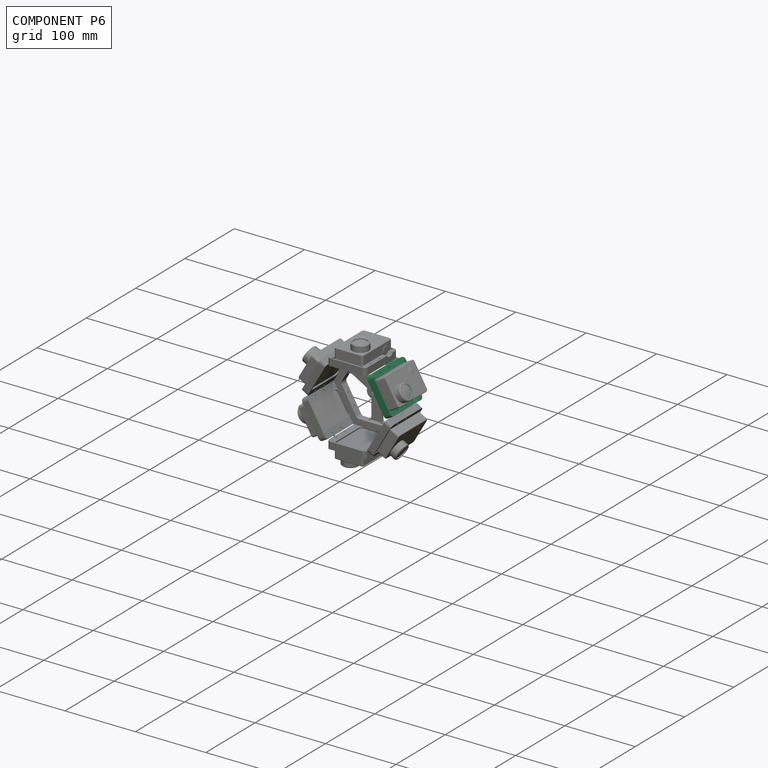
[diagram: component P6 — assembled]
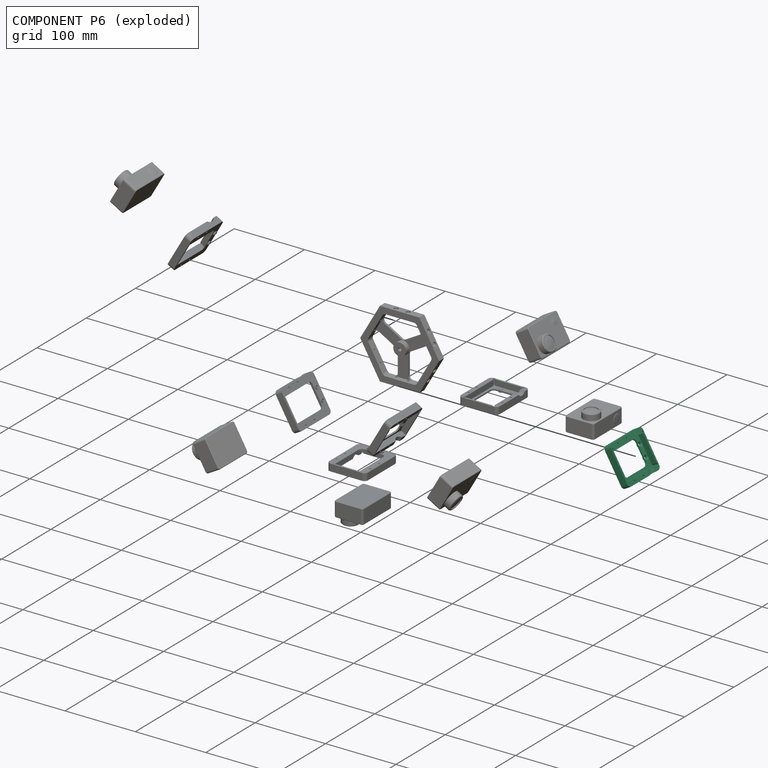
[diagram: component P6 — exploded]
COMPONENT P6 — same part as P1 (CADFS 00347183); its construction recipe is shown at P1.
Held by: FASTENED mate "Fastened 11" to P4; FASTENED mate "Fastened 5" to P8.
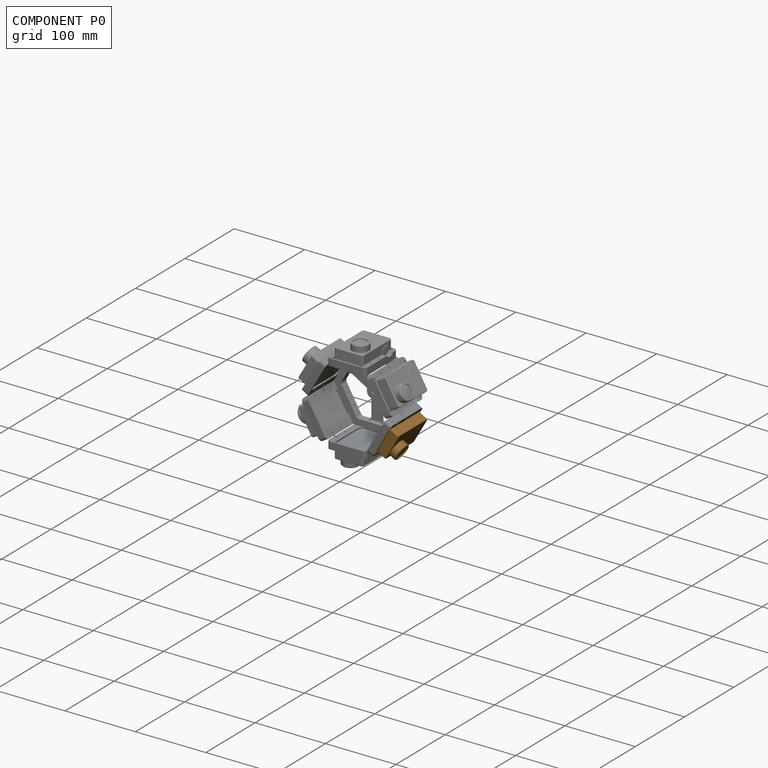
[diagram: component P0 — assembled]
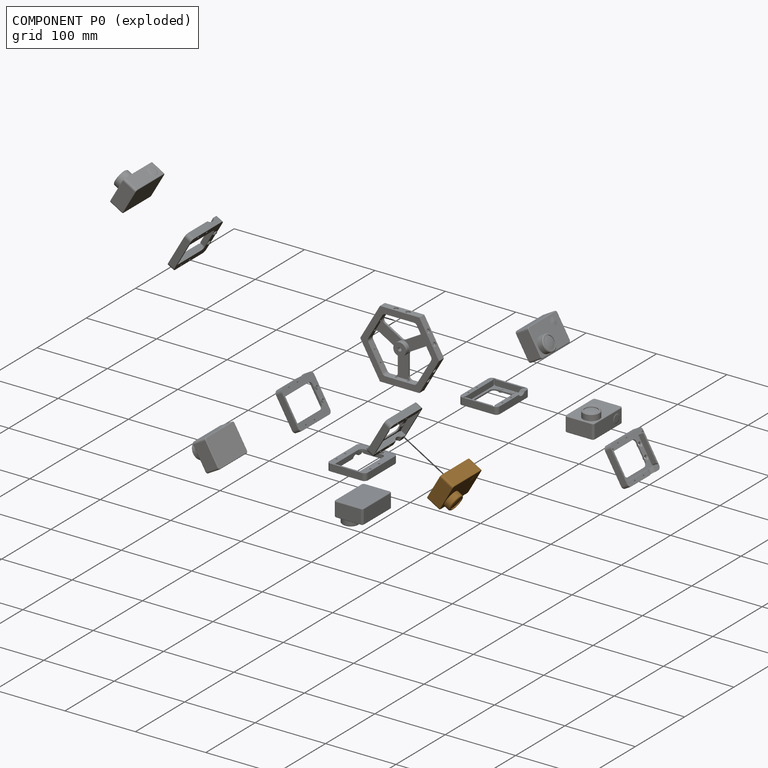
[diagram: component P0 — exploded]
COMPONENT P0 — geometry summary (no construction recipe available for this part):
  bounding box: 59.5 x 41.7 x 30.0 mm
  B-rep topology: 1 solid, 49 faces, 357 edges
  volume: 54277 mm^3 (73% of its bounding box)
Held by: FASTENED mate "Fastened 10" to P3.
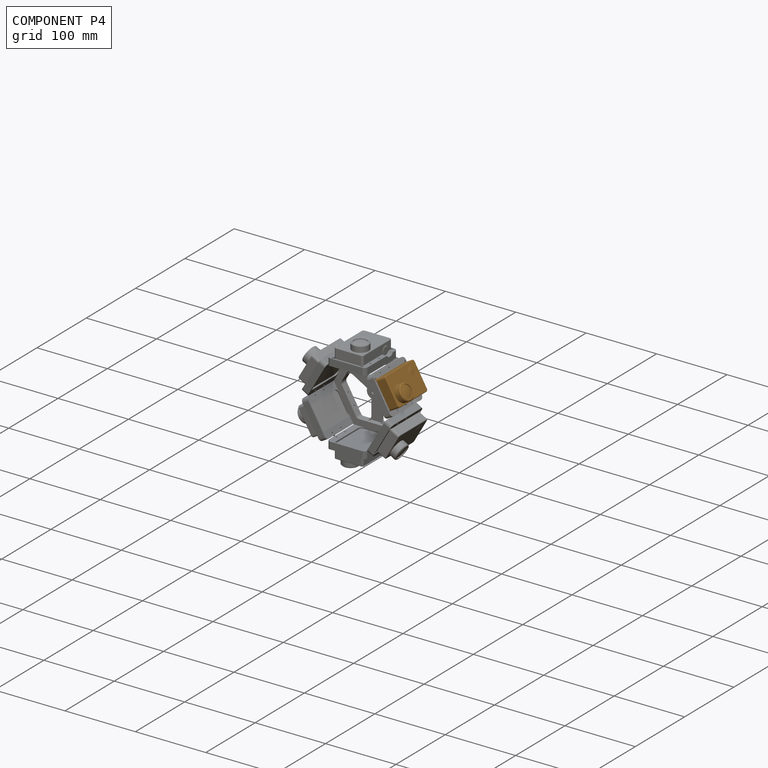
[diagram: component P4 — assembled]
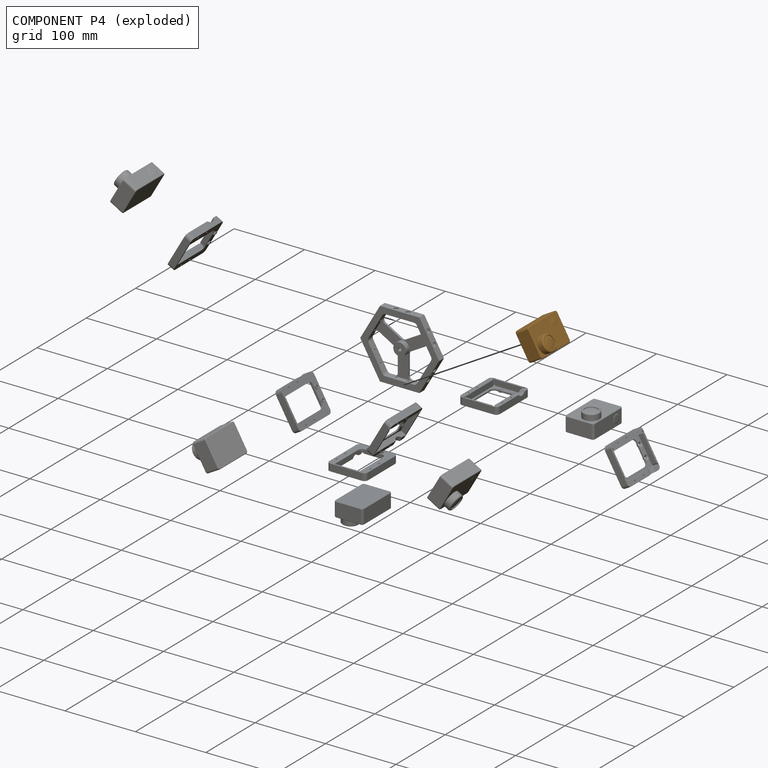
[diagram: component P4 — exploded]
COMPONENT P4 — geometry summary (no construction recipe available for this part):
  bounding box: 59.5 x 41.7 x 30.0 mm
  B-rep topology: 1 solid, 49 faces, 357 edges
  volume: 54277 mm^3 (73% of its bounding box)
Held by: FASTENED mate "Fastened 11" to P6.
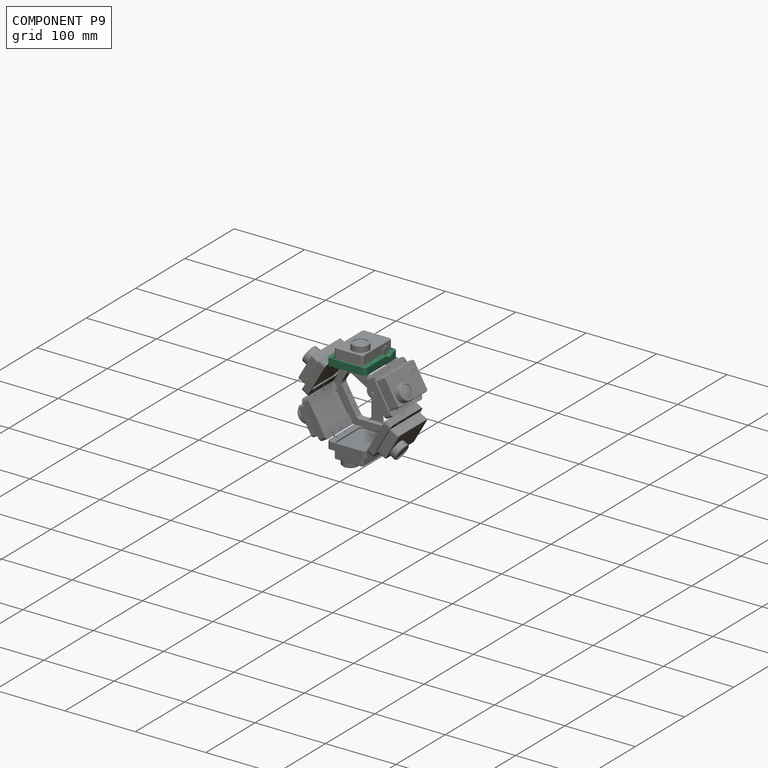
[diagram: component P9 — assembled]
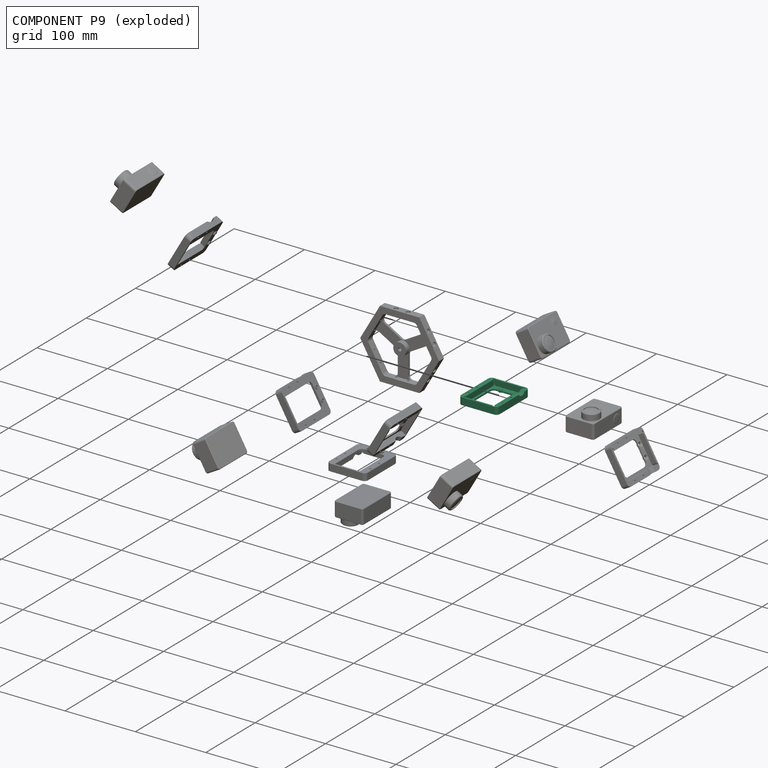
[diagram: component P9 — exploded]
COMPONENT P9 — same part as P1 (CADFS 00347183); its construction recipe is shown at P1.
Held by: FASTENED mate "Fastened 6" to P8; FASTENED mate "Fastened 12" to P2.
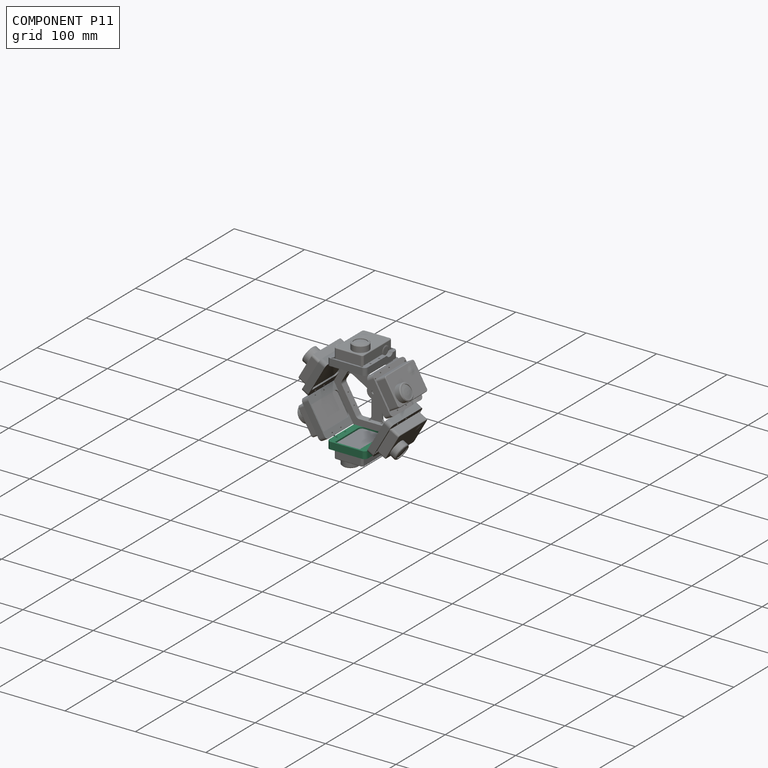
[diagram: component P11 — assembled]
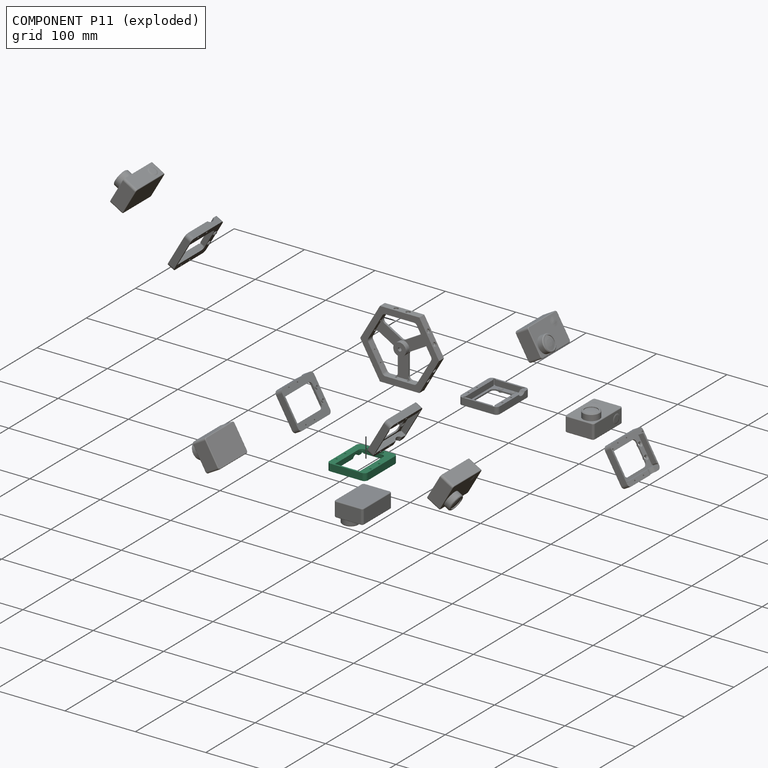
[diagram: component P11 — exploded]
COMPONENT P11 — same part as P1 (CADFS 00347183); its construction recipe is shown at P1.
Held by: FASTENED mate "Fastened 9" to P7; FASTENED mate "Fastened 1" to P8.
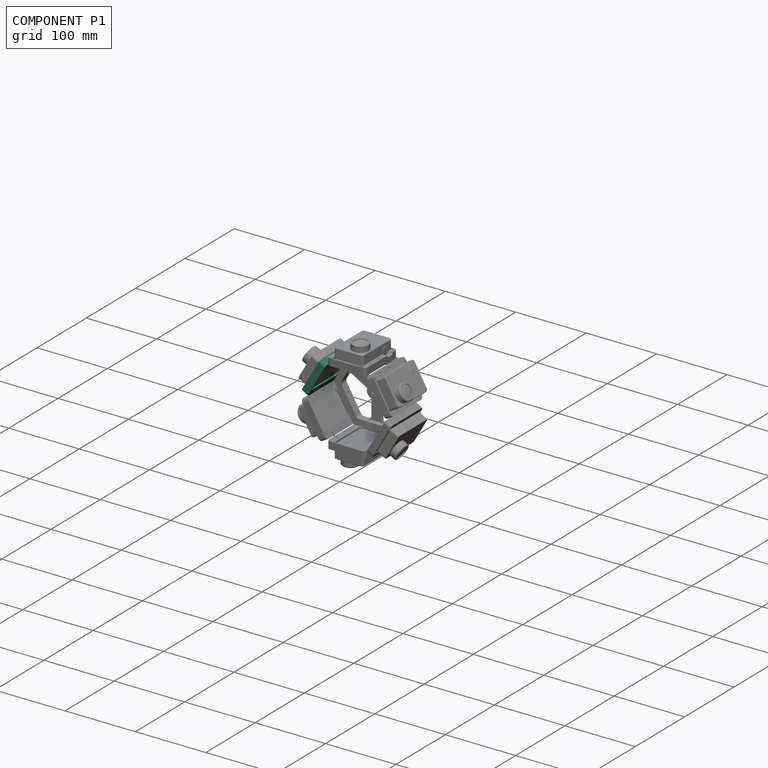
[diagram: component P1 — assembled]
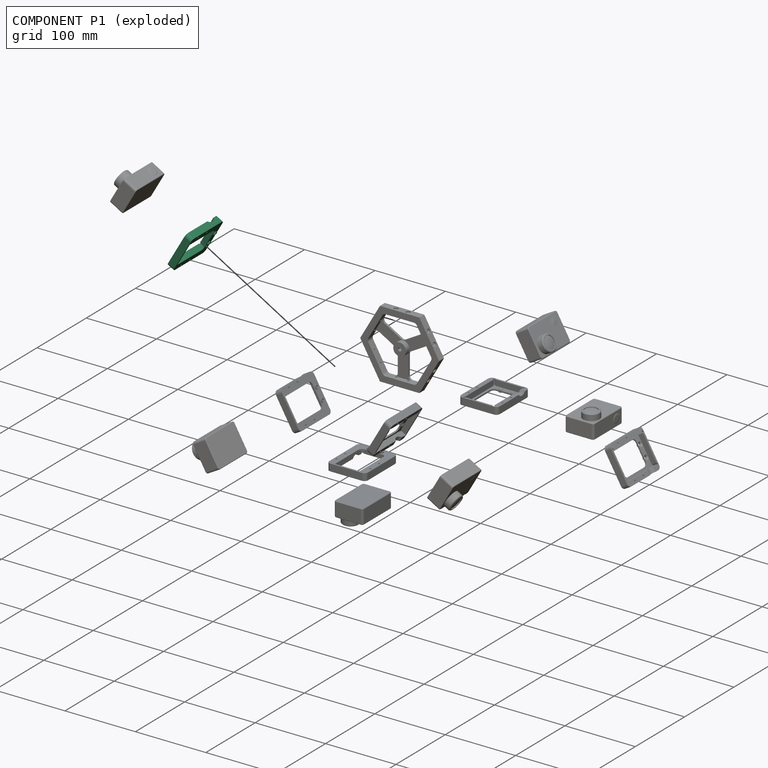
[diagram: component P1 — exploded]
COMPONENT P1 — recipe-attached (CADFS 00347183, mesh-verified: the recipe's output STEP matches this component's geometry to below the mesh-comparison resolution (tessellation chordal tolerance ~0.129 mm)).
Held by: FASTENED mate "Fastened 8" to P10; FASTENED mate "Fastened 4" to P8.
Construction recipe (FeatureScript — the CAD program that rebuilds this solid; sketch coordinates are in the units given by the * unit suffixes, e.g. mm):

FeatureScript 1511;
import(path : "onshape/std/geometry.fs", version : "1511.0");
import(path : "onshape/std/common.fs", version : "1511.0");
const mm = millimeter;
const VERTEX = EntityType.VERTEX;
const EDGE = EntityType.EDGE;
const FACE = EntityType.FACE;
const BODY = EntityType.BODY;
function v(x, y){return vector(x, y);}
function OD(order){return orderDisambiguation(order);}
function OSD(set){return originalSetDisambiguation(set);}
function TD(topology){return topologyDisambiguation(topology);}
function TDD(query){return trueDependencyDisambiguation(query);}
function sQuery(a, b, c) {return sketchEntityQuery(a, b, c);}

annotation { "Feature Type Name" : "Feature", "Feature Type Description" : "" }
export const myFeature = defineFeature(function(context is Context, id is Id, definition is map)
    precondition{}
    {
        {
            var Q0;
            Q0=qCreatedBy(makeId("Front.planeOp"),FACE);
            var sketch = newSketch(context, id + "F0", { "sketchPlane" : qUnion([Q0])});
            skLineSegment(sketch, "E0.bottom", {"start": v(27.5, -5) * mm, "end": v(-27.5, -5) * mm});
            skLineSegment(sketch, "E0.top", {"start": v(27.5, 5) * mm, "end": v(-27.5, 5) * mm});
            skLineSegment(sketch, "E0.left", {"start": v(27.5, -5) * mm, "end": v(27.5, 5) * mm});
            skLineSegment(sketch, "E0.right", {"start": v(-27.5, -5) * mm, "end": v(-27.5, 5) * mm});
            skPoint(sketch, "E0.middle", {"position": v(0, 0) * mm});
            skSolve(sketch);
        }
        {
            var Q0;
            Q0 = qSketchRegion(id + "F0", true);
            extrude(context, id + "F1", {"entities" : qUnion([Q0]), "endBound" : BoundingType.SYMMETRIC, "depth" : 65 * mm});
        }
        {
            var Q0;
            Q0=qCreatedBy(makeId("Top.planeOp"),FACE);
            var sketch = newSketch(context, id + "F2", { "sketchPlane" : qUnion([Q0])});
            skPoint(sketch, "E1.middle", {"position": v(0, 0) * mm});
            skPoint(sketch, "E2.visualSharp", {"position": v(17.5, 22.5) * mm});
            skPoint(sketch, "E3.visualSharp", {"position": v(-17.5, 22.5) * mm});
            skLineSegment(sketch, "E4", {"start": v(-17.5, 17.5) * mm, "end": v(-17.5, -30) * mm});
            skLineSegment(sketch, "E5", {"start": v(17.5, 17.5) * mm, "end": v(17.5, -30) * mm});
            skLineSegment(sketch, "E6", {"start": v(17.5, -30) * mm, "end": v(-17.5, -30) * mm});
            skLineSegment(sketch, "E7", {"start": v(-12.5, 22.5) * mm, "end": v(12.5, 22.5) * mm});
            skArc(sketch, "E8.filletArc", {"start": v(17.5, 17.5) * mm, "mid": v(16.04, 21.04) * mm, "end": v(12.5, 22.5) * mm});
            skArc(sketch, "E9.filletArc", {"start": v(-12.5, 22.5) * mm, "mid": v(-16.04, 21.04) * mm, "end": v(-17.5, 17.5) * mm});
            skSolve(sketch);
        }
        {
            var Q0;
            Q0=makeQuery(id+"F1.opExtrude","CAP_EDGE",EDGE,{"disambiguationData":[OSD([sQuery(id+"F0.wireOp",EDGE,"E0.left")])],"isStart":false});
            var Q1;
            Q1=makeQuery(id+"F1.opExtrude","CAP_EDGE",EDGE,{"disambiguationData":[OSD([sQuery(id+"F0.wireOp",EDGE,"E0.right")])],"isStart":false});
            var Q2;
            Q2=makeQuery(id+"F1.opExtrude","CAP_EDGE",EDGE,{"disambiguationData":[OSD([sQuery(id+"F0.wireOp",EDGE,"E0.right")])],"isStart":true});
            var Q3;
            Q3=makeQuery(id+"F1.opExtrude","CAP_EDGE",EDGE,{"disambiguationData":[OSD([sQuery(id+"F0.wireOp",EDGE,"E0.left")])],"isStart":true});
            fillet(context, id + "F3", {"entities" : qUnion([Q0, Q1, Q2, Q3]), "radius" : 5 * mm, "tangentPropagation" : true, "allowEdgeOverflow" : false});
        }
        {
            var Q0;
            Q0 = qSketchRegion(id + "F2", true);
            var Q1;
            Q1=makeQuery(id+"F1.opExtrude","SWEPT_FACE",FACE,{"disambiguationData":[OSD([sQuery(id+"F0.wireOp",EDGE,"E0.top")])]});
            extrude(context, id + "F4", {"entities" : qUnion([Q0]), "operationType" : NewBodyOperationType.REMOVE, "endBound" : BoundingType.SYMMETRIC, "oppositeDirection" : true, "endBoundEntityFace" : qUnion([Q1]), "depth" : 25 * mm});
        }
        {
            var Q0;
            Q0=qCreatedBy(makeId("Top.planeOp"),FACE);
            var sketch = newSketch(context, id + "F5", { "sketchPlane" : qUnion([Q0])});
            skLineSegment(sketch, "E10.bottom", {"start": v(20.75, -30) * mm, "end": v(-20.75, -30) * mm});
            skLineSegment(sketch, "E10.top", {"start": v(20.75, 30) * mm, "end": v(-20.75, 30) * mm});
            skLineSegment(sketch, "E10.left", {"start": v(20.75, -30) * mm, "end": v(20.75, 30) * mm});
            skLineSegment(sketch, "E10.right", {"start": v(-20.75, -30) * mm, "end": v(-20.75, 30) * mm});
            skPoint(sketch, "E10.middle", {"position": v(0, 0) * mm});
            skCircle(sketch, "E11", {"center": v(-20.75, 30) * mm, "radius": 1.5 * mm});
            skCircle(sketch, "E12", {"center": v(20.75, 30) * mm, "radius": 1.5 * mm});
            skCircle(sketch, "E13", {"center": v(-20.75, -30) * mm, "radius": 1.5 * mm});
            skCircle(sketch, "E14", {"center": v(20.75, -30) * mm, "radius": 1.5 * mm});
            skSolve(sketch);
        }
        {
            var Q0;
            Q0 = qSketchRegion(id + "F5", true);
            extrude(context, id + "F6", {"entities" : qUnion([Q0]), "operationType" : NewBodyOperationType.REMOVE, "oppositeDirection" : true, "depth" : 30 * mm});
        }
        {
            var Q0;
            Q0 = qSketchRegion(id + "F5", true);
            extrude(context, id + "F7", {"entities" : qUnion([Q0]), "operationType" : NewBodyOperationType.REMOVE, "depth" : 3 * mm});
        }
        {
            var Q0;
            Q0=makeQuery(id+"F7.boolean.opBoolean","COPY",FACE,{"derivedFrom":makeQuery(id+"F7.opExtrude","CAP_FACE",FACE,{"disambiguationData":[OSD([sQuery(id+"F5.wireOp",EDGE,"E10.bottom"),sQuery(id+"F5.wireOp",EDGE,"E10.top"),sQuery(id+"F5.wireOp",EDGE,"E10.left"),sQuery(id+"F5.wireOp",EDGE,"E10.right"),sQuery(id+"F5.wireOp",EDGE,"E11"),sQuery(id+"F5.wireOp",EDGE,"E12"),sQuery(id+"F5.wireOp",EDGE,"E13"),sQuery(id+"F5.wireOp",EDGE,"E14")])],"isStart":false})});
            var sketch = newSketch(context, id + "F8", { "sketchPlane" : qUnion([Q0])});
            skPoint(sketch, "E15", {"position": v(-8.5, -26.5) * mm});
            skPoint(sketch, "E16", {"position": v(8.5, -26.5) * mm});
            skSolve(sketch);
        }
        {
            var Q0;
            Q0=sQuery(id+"F8.wireOp",VERTEX,"E15");
            var Q1;
            Q1=sQuery(id+"F8.wireOp",VERTEX,"E16");
            var Q2;
            Q2=makeQuery(id+"F1.opExtrude","SWEPT_BODY",BODY,{"disambiguationData":[OSD([sQuery(id+"F0.wireOp",EDGE,"E0.bottom"),sQuery(id+"F0.wireOp",EDGE,"E0.top"),sQuery(id+"F0.wireOp",EDGE,"E0.left"),sQuery(id+"F0.wireOp",EDGE,"E0.right")])]});
            hole(context, id + "F9", {"style" : HoleStyle.C_SINK, "endStyle" : HoleEndStyle.THROUGH, "standardTappedOrClearance" : lookupTablePath({ "standard" : "ISO", "fit" : "Normal", "size" : "M3", "type" : "Clearance" }), "standardBlindInLast" : lookupTablePath({ "fit" : "Standard", "standard" : "ISO", "size" : "M3", "type" : "Clearance" }), "holeDiameter" : 3.3 * mm, "cSinkDiameter" : 6.72 * mm, "cSinkAngle" : 90 * degree, "tappedDepth" : 12 * mm, "tapClearance" : 3, "locations" : qUnion([Q0, Q1]), "scope" : qUnion([Q2])});
        }
        {
            var Q0;
            Q0=makeQuery(id+"F1.opExtrude","SWEPT_FACE",FACE,{"disambiguationData":[OSD([sQuery(id+"F0.wireOp",EDGE,"E0.top")])]});
            var sketch = newSketch(context, id + "F10", { "sketchPlane" : qUnion([Q0])});
            skCircle(sketch, "E17", {"center": v(8.5, 26.5) * mm, "radius": 3 * mm});
            skCircle(sketch, "E18", {"center": v(-8.5, 26.5) * mm, "radius": 3 * mm});
            skSolve(sketch);
        }
        {
            var Q0;
            Q0 = qSketchRegion(id + "F10", true);
            extrude(context, id + "F11", {"entities" : qUnion([Q0]), "operationType" : NewBodyOperationType.ADD, "depth" : 1.5 * mm});
        }
        {
            var Q0;
            Q0=sQuery(id+"F8.wireOp",VERTEX,"E15");
            var Q1;
            Q1=sQuery(id+"F8.wireOp",VERTEX,"E16");
            var Q2;
            Q2=sQuery(id+"F8.wireOp",VERTEX,"94b8a258-85e8-4356-9477-375777d7274d");
            var Q3;
            Q3=sQuery(id+"F8.wireOp",VERTEX,"40654904-7518-4712-aa85-c7850a164911");
            var Q4;
            Q4=makeQuery(id+"F1.opExtrude","SWEPT_BODY",BODY,{"disambiguationData":[OSD([sQuery(id+"F0.wireOp",EDGE,"E0.bottom"),sQuery(id+"F0.wireOp",EDGE,"E0.top"),sQuery(id+"F0.wireOp",EDGE,"E0.left"),sQuery(id+"F0.wireOp",EDGE,"E0.right")])]});
            hole(context, id + "F12", {"style" : HoleStyle.C_SINK, "endStyle" : HoleEndStyle.BLIND, "standardTappedOrClearance" : lookupTablePath({ "standard" : "ISO", "fit" : "Normal", "size" : "M3", "type" : "Clearance" }), "standardBlindInLast" : lookupTablePath({ "fit" : "Standard", "standard" : "ISO", "size" : "M3", "type" : "Clearance" }), "holeDiameter" : 3.3 * mm, "cSinkDiameter" : 6.72 * mm, "cSinkAngle" : 90 * degree, "holeDepth" : 13.5 * mm, "tappedDepth" : 12 * mm, "tapClearance" : 3, "locations" : qUnion([Q0, Q1, Q2, Q3]), "scope" : qUnion([Q4])});
        }
        {
            var Q0;
            Q0=makeQuery(id+"F1.opExtrude","SWEPT_FACE",FACE,{"disambiguationData":[OSD([sQuery(id+"F0.wireOp",EDGE,"E0.bottom")])]});
            var sketch = newSketch(context, id + "F13", { "sketchPlane" : qUnion([Q0])});
            skPoint(sketch, "E19", {"position": v(-24.12, 0) * mm});
            skPoint(sketch, "E20", {"position": v(24.12, 0) * mm});
            skPoint(sketch, "E21", {"position": v(-24.12, 17.5) * mm});
            skPoint(sketch, "E22", {"position": v(24.12, 17.5) * mm});
            skSolve(sketch);
        }
        {
            var Q0;
            Q0=sQuery(id+"F13.wireOp",VERTEX,"E19");
            var Q1;
            Q1=sQuery(id+"F13.wireOp",VERTEX,"E20");
            var Q2;
            Q2=sQuery(id+"F13.wireOp",VERTEX,"E21");
            var Q3;
            Q3=sQuery(id+"F13.wireOp",VERTEX,"E22");
            var Q4;
            Q4=makeQuery(id+"F1.opExtrude","SWEPT_BODY",BODY,{"disambiguationData":[OSD([sQuery(id+"F0.wireOp",EDGE,"E0.bottom"),sQuery(id+"F0.wireOp",EDGE,"E0.top"),sQuery(id+"F0.wireOp",EDGE,"E0.left"),sQuery(id+"F0.wireOp",EDGE,"E0.right")])]});
            hole(context, id + "F14", {"style" : HoleStyle.SIMPLE, "endStyle" : HoleEndStyle.BLIND, "standardTappedOrClearance" : lookupTablePath({ "standard" : "ISO", "engagement" : "75%", "pitch" : "0.5 mm", "size" : "M3", "type" : "Tapped" }), "standardBlindInLast" : lookupTablePath({ "standard" : "ISO", "engagement" : "75%", "pitch" : "0.5 mm", "size" : "M3", "type" : "Tapped" }), "holeDiameter" : 2.5 * mm, "showTappedDepth" : true, "holeDepth" : 13.5 * mm, "tappedDepth" : 12 * mm, "tapClearance" : 3, "locations" : qUnion([Q0, Q1, Q2, Q3]), "scope" : qUnion([Q4]), "majorDiameter" : 3 * mm});
        }
        {
            var Q0;
            Q0=makeQuery(id+"F1.opExtrude","SWEPT_FACE",FACE,{"disambiguationData":[OSD([sQuery(id+"F0.wireOp",EDGE,"E0.right")])]});
            var sketch = newSketch(context, id + "F15", { "sketchPlane" : qUnion([Q0])});
            skPoint(sketch, "E23", {"position": v(-16.97, -8.5) * mm});
            skCircle(sketch, "E24", {"center": v(-16.97, -8.5) * mm, "radius": 7 * mm});
            skSolve(sketch);
        }
        {
            var Q0;
            {var subQ0=sQuery(id+"F15.wireOp",EDGE,"E24");var subQ1=makeQuery(id+"F1.opExtrude","SWEPT_EDGE",EDGE,{"disambiguationData":[OSD([sQuery(id+"F0.wireOp",EDGE,"E0.bottom"),sQuery(id+"F0.wireOp",EDGE,"E0.right")])]});var subQ2=makeQuery(id+"F15.imprint","INTERSECT",VERTEX,{"disambiguationData":[OD(0.0)],"derivedFrom":[subQ1,subQ0]});Q0=makeQuery(id+"F15.imprint","IMPRINT",FACE,{"disambiguationData":[TD([[makeQuery(id+"F15.imprint","IMPRINT",EDGE,{"disambiguationData":[TD([[subQ2,1.0]])],"derivedFrom":subQ0}),1.0]])]});}
            extrude(context, id + "F16", {"entities" : qUnion([Q0]), "operationType" : NewBodyOperationType.REMOVE, "oppositeDirection" : true, "depth" : 12 * mm});
        }
    });
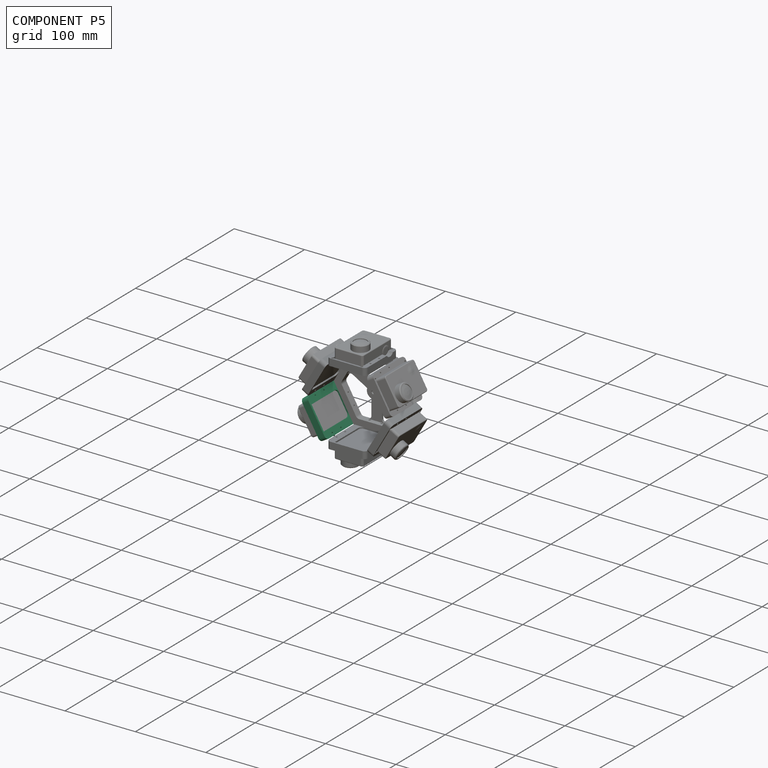
[diagram: component P5 — assembled]
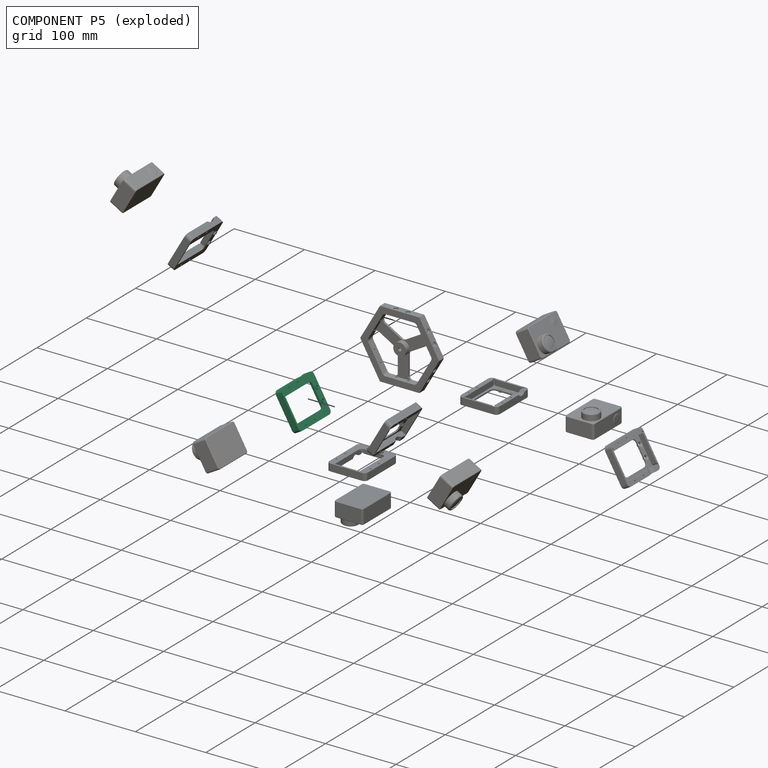
[diagram: component P5 — exploded]
COMPONENT P5 — same part as P1 (CADFS 00347183); its construction recipe is shown at P1.
Held by: FASTENED mate "Fastened 3" to P8; FASTENED mate "Fastened 7" to P12.
